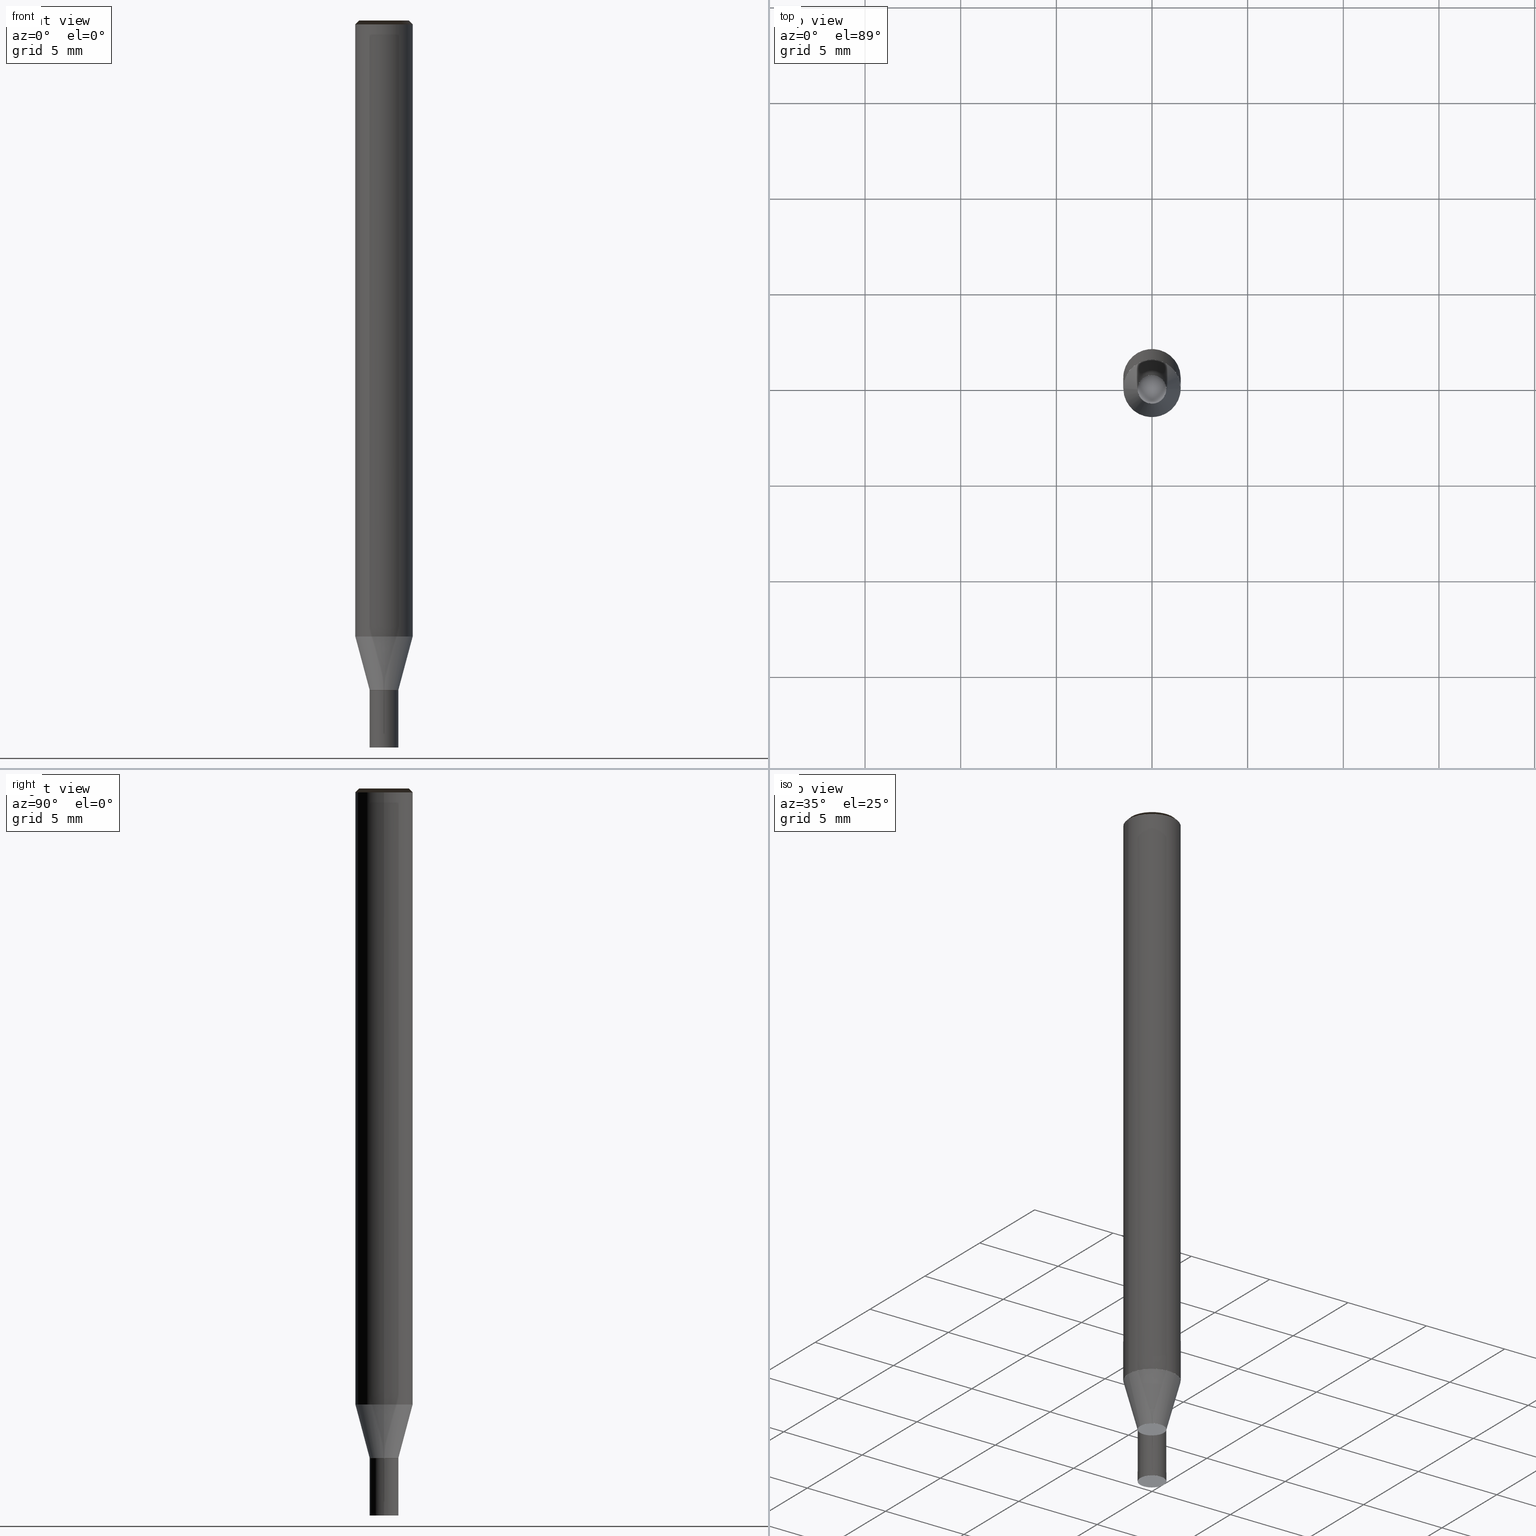
[diagram: canonical four-view strip — front | top / right | iso, engineering-drawing reading convention]
A machine part, canonical four-view strip (front | top / right | iso — engineering-drawing reading convention). The complete STEP part file that produces these views, byte-faithful:
ISO-10303-21;
HEADER;
/* Generated by ISBE GmbH (www.isbe.de) */
/* OPTION: using custom schema-name function */

FILE_DESCRIPTION(
/* description */ (''),
/* implementation_level */ '2;1');

FILE_NAME(
/*name*/ 'Drawing No  1070150',
/*time_stamp*/'2021-9-28T14:15:21',
/*author*/ ('ISBE GmbH'),
/*organization*/ ('ISBE GmbH'),
/*preprocessor_version*/ 'STEP IO v1.0',
/*originating_system*/ '',
/*authorisation*/ '');

FILE_SCHEMA (('AUTOMOTIVE_DESIGN'));
ENDSEC;

DATA;
#10=SHAPE_DEFINITION_REPRESENTATION(#11,#57);
#11=PRODUCT_DEFINITION_SHAPE('Document','',#13);
#12=PRODUCT_DEFINITION_CONTEXT('3D Mechanical Parts',#17,'design');
#13=PRODUCT_DEFINITION('A','First version',#14,#12);
#14=PRODUCT_DEFINITION_FORMATION_WITH_SPECIFIED_SOURCE('A','First version',#19,.MADE.);
#15=PRODUCT_RELATED_PRODUCT_CATEGORY('tool','tool',(#19));
#16=APPLICATION_PROTOCOL_DEFINITION('Draft International Standard', 'automotive_design',1999,#17);
#17=APPLICATION_CONTEXT('data for automotive mechanical design processes');
#18=PRODUCT_CONTEXT('3D Mechanical Parts',#17,'mechanical');
#19=PRODUCT('Document','Document','ISBE converted to STEP',(#18));
#20=(
LENGTH_UNIT()
NAMED_UNIT(*)
SI_UNIT(.MILLI.,.METRE.)
);
#21=(
NAMED_UNIT(*)
PLANE_ANGLE_UNIT()
SI_UNIT($,.RADIAN.)
);
#22=DIMENSIONAL_EXPONENTS(0.,0.,0.,0.,0.,0.,0.);
#23=PLANE_ANGLE_MEASURE_WITH_UNIT(PLANE_ANGLE_MEASURE(0.01745329252),#21);
#24=(
CONVERSION_BASED_UNIT('DEGREES',#23)
NAMED_UNIT(#22)
PLANE_ANGLE_UNIT()
);
#25=(
NAMED_UNIT(*)
SI_UNIT($,.STERADIAN.)
SOLID_ANGLE_UNIT()
);
#26=UNCERTAINTY_MEASURE_WITH_UNIT(LENGTH_MEASURE(0.001),#20, 'DISTANCE_ACCURACY_VALUE', 'Maximum model space distance between geometric entities at asserted connectivities');
#27=(
GEOMETRIC_REPRESENTATION_CONTEXT(3)
GLOBAL_UNCERTAINTY_ASSIGNED_CONTEXT((#26))
GLOBAL_UNIT_ASSIGNED_CONTEXT((#25,#24,#20))
REPRESENTATION_CONTEXT('ID1','3D')
);
#28=CARTESIAN_POINT('',(0.0,0.0,0.0));
#29=DIRECTION('',(1.0,0.0,0.0));
#30=DIRECTION('',(0.0,0.0,1.0));
#31=AXIS2_PLACEMENT_3D('',#28,#30,#29);
#32=CARTESIAN_POINT('',(0.0,0.0,0.0));
#33=DIRECTION('',(1.0,0.0,0.0));
#34=DIRECTION('',(0.0,0.0,1.0));
#35=AXIS2_PLACEMENT_3D('',#32,#34,#33);
#36=CARTESIAN_POINT('',(0.0,0.0,0.0));
#37=DIRECTION('',(1.0,0.0,0.0));
#38=DIRECTION('',(0.0,0.0,1.0));
#39=AXIS2_PLACEMENT_3D('',#36,#38,#37);
#40=CARTESIAN_POINT('',(0.0,0.0,0.0));
#41=DIRECTION('',(0.0,0.0,1.0));
#42=DIRECTION('',(1.0,0.0,0.0));
#43=AXIS2_PLACEMENT_3D('MCS',#40,#42,#41);
#44=CARTESIAN_POINT('',(0.0,0.0,32.2));
#45=DIRECTION('',(0.0,0.0,1.0));
#46=DIRECTION('',(1.0,0.0,0.0));
#47=AXIS2_PLACEMENT_3D('PCS',#44,#46,#45);
#48=CARTESIAN_POINT('',(0.0,0.0,-5.8));
#49=DIRECTION('',(0.0,0.0,1.0));
#50=DIRECTION('',(1.0,0.0,0.0));
#51=AXIS2_PLACEMENT_3D('CIP',#48,#50,#49);
#52=CARTESIAN_POINT('',(0.0,-0.75,-5.8));
#53=DIRECTION('',(0.0,0.0,1.0));
#54=DIRECTION('',(1.0,0.0,0.0));
#55=AXIS2_PLACEMENT_3D('CRP',#52,#54,#53);
#57=SHAPE_REPRESENTATION('Document',(#31,#35,#39,#43,#47,#51,#55),#27);
#58=DIRECTION('',(1.0,0.0,0.0));
#59=DIRECTION('',(0.0,0.0,1.0));
#60=CARTESIAN_POINT('',(-0.009999111072,-0.000133333333,-5.8));
#61=CARTESIAN_POINT('',(-0.009844606913,-0.011720115151,-5.8));
#62=CARTESIAN_POINT('',(-0.009613339801,-0.02906360672,-5.8));
#63=CARTESIAN_POINT('',(-0.009401561042,-0.044945601673,-5.8));
#64=CARTESIAN_POINT('',(-0.009193747038,-0.06053026653,-5.8));
#65=CARTESIAN_POINT('',(-0.008987451523,-0.076001054767,-5.8));
#66=CARTESIAN_POINT('',(-0.008781902181,-0.091415885016,-5.8));
#67=CARTESIAN_POINT('',(-0.008576775475,-0.106799020404,-5.8));
#68=CARTESIAN_POINT('',(-0.008371911563,-0.122162447994,-5.8));
#69=CARTESIAN_POINT('',(-0.008167222276,-0.137512779837,-5.8));
#70=CARTESIAN_POINT('',(-0.007962654958,-0.152853964843,-5.8));
#71=CARTESIAN_POINT('',(-0.007758176207,-0.168188507982,-5.8));
#72=CARTESIAN_POINT('',(-0.007553763803,-0.183518075429,-5.8));
#73=CARTESIAN_POINT('',(-0.007349402393,-0.198843818742,-5.8));
#74=CARTESIAN_POINT('',(-0.007145081021,-0.214166559397,-5.8));
#75=CARTESIAN_POINT('',(-0.006940791664,-0.229486899204,-5.8));
#76=CARTESIAN_POINT('',(-0.006736528307,-0.244805289156,-5.8));
#77=CARTESIAN_POINT('',(-0.006532286355,-0.260122073906,-5.8));
#78=CARTESIAN_POINT('',(-0.006328062234,-0.275437521375,-5.8));
#79=CARTESIAN_POINT('',(-0.006123853127,-0.290751842986,-5.8));
#80=CARTESIAN_POINT('',(-0.005919656778,-0.306065207812,-5.8));
#81=CARTESIAN_POINT('',(-0.005715471362,-0.32137775268,-5.8));
#82=CARTESIAN_POINT('',(-0.005511295388,-0.336689589509,-5.8));
#83=CARTESIAN_POINT('',(-0.005307127623,-0.352000810732,-5.8));
#84=CARTESIAN_POINT('',(-0.005102967039,-0.367311493361,-5.8));
#85=CARTESIAN_POINT('',(-0.004898812775,-0.382621702074,-5.8));
#86=CARTESIAN_POINT('',(-0.004694664101,-0.39793149159,-5.8));
#87=CARTESIAN_POINT('',(-0.004490520395,-0.413240908516,-5.8));
#88=CARTESIAN_POINT('',(-0.004286381125,-0.428549992795,-5.8));
#89=CARTESIAN_POINT('',(-0.004082245831,-0.443858778857,-5.8));
#90=CARTESIAN_POINT('',(-0.003878114116,-0.45916729654,-5.8));
#91=CARTESIAN_POINT('',(-0.003673985633,-0.474475571827,-5.8));
#92=CARTESIAN_POINT('',(-0.00346986008,-0.489783627452,-5.8));
#93=CARTESIAN_POINT('',(-0.003265737189,-0.505091483394,-5.8));
#94=CARTESIAN_POINT('',(-0.003061616725,-0.520399157279,-5.8));
#95=CARTESIAN_POINT('',(-0.002857498482,-0.535706664716,-5.8));
#96=CARTESIAN_POINT('',(-0.002653382272,-0.551014019581,-5.8));
#97=CARTESIAN_POINT('',(-0.002449267932,-0.56632123425,-5.8));
#98=CARTESIAN_POINT('',(-0.002245155314,-0.581628319793,-5.8));
#99=CARTESIAN_POINT('',(-0.002041044286,-0.596935286146,-5.8));
#100=CARTESIAN_POINT('',(-0.001836934727,-0.612242142251,-5.8));
#101=CARTESIAN_POINT('',(-0.001632826531,-0.627548896177,-5.8));
#102=CARTESIAN_POINT('',(-0.0014287196,-0.642855555224,-5.8));
#103=CARTESIAN_POINT('',(-0.001224613846,-0.658162126014,-5.8));
#104=CARTESIAN_POINT('',(-0.001020509188,-0.673468614565,-5.8));
#105=CARTESIAN_POINT('',(-0.000816405554,-0.688775026361,-5.8));
#106=CARTESIAN_POINT('',(-0.000612302877,-0.704081366409,-5.8));
#107=CARTESIAN_POINT('',(-0.000408201096,-0.71938763929,-5.8));
#108=CARTESIAN_POINT('',(-0.000204100154,-0.734693849201,-5.8));
#109=CARTESIAN_POINT('',(0.0,-0.75,-5.8));
#110=CARTESIAN_POINT('',(0.02838749307,-0.749462574274,-5.750819672131));
#111=CARTESIAN_POINT('',(0.056734303023,-0.747851067299,-5.701639344262));
#112=CARTESIAN_POINT('',(0.084999805045,-0.745167788583,-5.652459016393));
#113=CARTESIAN_POINT('',(0.113143490849,-0.741416583628,-5.603278688525));
#114=CARTESIAN_POINT('',(0.141125026725,-0.736602828417,-5.554098360656));
#115=CARTESIAN_POINT('',(0.168904311348,-0.730733421713,-5.504918032787));
#116=CARTESIAN_POINT('',(0.196441533245,-0.723816775169,-5.455737704918));
#117=CARTESIAN_POINT('',(0.223697227852,-0.715862801276,-5.406557377049));
#118=CARTESIAN_POINT('',(0.250632334073,-0.706882899155,-5.35737704918));
#119=CARTESIAN_POINT('',(0.277208250256,-0.696889938218,-5.308196721311));
#120=CARTESIAN_POINT('',(0.303386889518,-0.685898239733,-5.259016393443));
#121=CARTESIAN_POINT('',(0.329130734329,-0.673923556288,-5.209836065574));
#122=CARTESIAN_POINT('',(0.354402890275,-0.660983049226,-5.160655737705));
#123=CARTESIAN_POINT('',(0.37916713894,-0.647095264044,-5.111475409836));
#124=CARTESIAN_POINT('',(0.403387989806,-0.632280103815,-5.062295081967));
#125=CARTESIAN_POINT('',(0.427030731115,-0.61655880067,-5.013114754098));
#126=CARTESIAN_POINT('',(0.450061479623,-0.599953885361,-4.96393442623));
#127=CARTESIAN_POINT('',(0.47244722915,-0.582489154979,-4.914754098361));
#128=CARTESIAN_POINT('',(0.494155897891,-0.564189638845,-4.865573770492));
#129=CARTESIAN_POINT('',(0.515156374385,-0.54508156264,-4.816393442623));
#130=CARTESIAN_POINT('',(0.53541856211,-0.525192310824,-4.767213114754));
#131=CARTESIAN_POINT('',(0.554913422609,-0.504550387383,-4.718032786885));
#132=CARTESIAN_POINT('',(0.573613017111,-0.483185374987,-4.668852459016));
#133=CARTESIAN_POINT('',(0.591490546567,-0.461127892588,-4.619672131148));
#134=CARTESIAN_POINT('',(0.608520390058,-0.438409551542,-4.570491803279));
#135=CARTESIAN_POINT('',(0.624678141517,-0.415062910305,-4.52131147541));
#136=CARTESIAN_POINT('',(0.639940644698,-0.391121427773,-4.472131147541));
#137=CARTESIAN_POINT('',(0.654286026372,-0.366619415327,-4.422950819672));
#138=CARTESIAN_POINT('',(0.667693727664,-0.341591987667,-4.373770491803));
#139=CARTESIAN_POINT('',(0.680144533526,-0.316075012482,-4.324590163934));
#140=CARTESIAN_POINT('',(0.691620600268,-0.290105059048,-4.275409836066));
#141=CARTESIAN_POINT('',(0.702105481135,-0.263719345822,-4.226229508197));
#142=CARTESIAN_POINT('',(0.711584149873,-0.2369556871,-4.177049180328));
#143=CARTESIAN_POINT('',(0.720043022269,-0.209852438826,-4.127868852459));
#144=CARTESIAN_POINT('',(0.727469975614,-0.182448443621,-4.07868852459));
#145=CARTESIAN_POINT('',(0.73385436608,-0.154782975115,-4.029508196721));
#146=CARTESIAN_POINT('',(0.73918704397,-0.12689568167,-3.980327868852));
#147=CARTESIAN_POINT('',(0.743460366837,-0.098826529547,-3.931147540984));
#148=CARTESIAN_POINT('',(0.746668210431,-0.070615745639,-3.881967213115));
#149=CARTESIAN_POINT('',(0.748805977477,-0.042303759815,-3.832786885246));
#150=CARTESIAN_POINT('',(0.749870604267,-0.013931146981,-3.783606557377));
#151=CARTESIAN_POINT('',(0.749860565046,0.014461431071,-3.734426229508));
#152=CARTESIAN_POINT('',(0.748775874202,0.042833283936,-3.685245901639));
#153=CARTESIAN_POINT('',(0.746618086244,0.071143750911,-3.63606557377));
#154=CARTESIAN_POINT('',(0.743390293573,0.099352259268,-3.586885245902));
#155=CARTESIAN_POINT('',(0.739097122053,0.127418382397,-3.537704918033));
#156=CARTESIAN_POINT('',(0.73374472438,0.155301897749,-3.488524590164));
#157=CARTESIAN_POINT('',(0.727340771263,0.182962844474,-3.439344262295));
#158=CARTESIAN_POINT('',(0.719894440434,0.210361580693,-3.390163934426));
#159=CARTESIAN_POINT('',(0.711416403492,0.237458840311,-3.340983606557));
#160=CARTESIAN_POINT('',(0.701918810611,0.264215789291,-3.291803278689));
#161=CARTESIAN_POINT('',(0.691415273126,0.290594081304,-3.24262295082));
#162=CARTESIAN_POINT('',(0.679920844026,0.31655591269,-3.193442622951));
#163=CARTESIAN_POINT('',(0.667451996385,0.342064076632,-3.144262295082));
#164=CARTESIAN_POINT('',(0.654026599746,0.367082016482,-3.095081967213));
#165=CARTESIAN_POINT('',(0.63966389452,0.391573878147,-3.045901639344));
#166=CARTESIAN_POINT('',(0.624384464407,0.415504561476,-2.996721311475));
#167=CARTESIAN_POINT('',(0.608210206895,0.438839770564,-2.947540983607));
#168=CARTESIAN_POINT('',(0.591164301884,0.461546062899,-2.898360655738));
#169=CARTESIAN_POINT('',(0.573271178463,0.483590897293,-2.849180327869));
#170=CARTESIAN_POINT('',(0.554556479896,0.504942680515,-2.8));
#171=CARTESIAN_POINT('',(0.00511502559,-0.008592817537,-5.8));
#172=CARTESIAN_POINT('',(0.015072220912,-0.002665622102,-5.8));
#173=CARTESIAN_POINT('',(0.029976491645,0.006206406877,-5.8));
#174=CARTESIAN_POINT('',(0.043624813359,0.014330810139,-5.8));
#175=CARTESIAN_POINT('',(0.057017622032,0.022303114774,-5.8));
#176=CARTESIAN_POINT('',(0.070312569904,0.030217166049,-5.8));
#177=CARTESIAN_POINT('',(0.083559429824,0.038102592126,-5.8));
#178=CARTESIAN_POINT('',(0.096779052506,0.045971804758,-5.8));
#179=CARTESIAN_POINT('',(0.109981739133,0.053830935905,-5.8));
#180=CARTESIAN_POINT('',(0.123173171822,0.061683367949,-5.8));
#181=CARTESIAN_POINT('',(0.136356744103,0.069531120946,-5.8));
#182=CARTESIAN_POINT('',(0.14953460864,0.077375476309,-5.8));
#183=CARTESIAN_POINT('',(0.162708197277,0.085217286367,-5.8));
#184=CARTESIAN_POINT('',(0.175878499613,0.093057140196,-5.8));
#185=CARTESIAN_POINT('',(0.18904622159,0.100895458022,-5.8));
#186=CARTESIAN_POINT('',(0.202211880378,0.108732547699,-5.8));
#187=CARTESIAN_POINT('',(0.215375863543,0.116568639931,-5.8));
#188=CARTESIAN_POINT('',(0.228538467265,0.124403911025,-5.8));
#189=CARTESIAN_POINT('',(0.241699921784,0.132238498036,-5.8));
#190=CARTESIAN_POINT('',(0.254860408786,0.140072509116,-5.8));
#191=CARTESIAN_POINT('',(0.268020073568,0.147906030755,-5.8));
#192=CARTESIAN_POINT('',(0.281179033713,0.155739132946,-5.8));
#193=CARTESIAN_POINT('',(0.294337385399,0.163571872941,-5.8));
#194=CARTESIAN_POINT('',(0.307495208058,0.171404298024,-5.8));
#195=CARTESIAN_POINT('',(0.320652567872,0.17923644759,-5.8));
#196=CARTESIAN_POINT('',(0.333809520423,0.187068354725,-5.8));
#197=CARTESIAN_POINT('',(0.346966112733,0.194900047421,-5.8));
#198=CARTESIAN_POINT('',(0.360122384855,0.20273154952,-5.8));
#199=CARTESIAN_POINT('',(0.373278371114,0.210562881453,-5.8));
#200=CARTESIAN_POINT('',(0.386434101099,0.218394060835,-5.8));
#201=CARTESIAN_POINT('',(0.399589600449,0.226225102927,-5.8));
#202=CARTESIAN_POINT('',(0.412744891494,0.234056021022,-5.8));
#203=CARTESIAN_POINT('',(0.425899993771,0.24188682675,-5.8));
#204=CARTESIAN_POINT('',(0.439054924449,0.24971753033,-5.8));
#205=CARTESIAN_POINT('',(0.452209698674,0.257548140778,-5.8));
#206=CARTESIAN_POINT('',(0.465364329861,0.265378666081,-5.8));
#207=CARTESIAN_POINT('',(0.478518829935,0.273209113337,-5.8));
#208=CARTESIAN_POINT('',(0.491673209529,0.281039488875,-5.8));
#209=CARTESIAN_POINT('',(0.504827478158,0.288869798359,-5.8));
#210=CARTESIAN_POINT('',(0.51798164436,0.296700046871,-5.8));
#211=CARTESIAN_POINT('',(0.53113571582,0.304530238987,-5.8));
#212=CARTESIAN_POINT('',(0.544289699472,0.312360378833,-5.8));
#213=CARTESIAN_POINT('',(0.557443601588,0.320190470144,-5.8));
#214=CARTESIAN_POINT('',(0.57059742786,0.328020516307,-5.8));
#215=CARTESIAN_POINT('',(0.583751183459,0.335850520401,-5.8));
#216=CARTESIAN_POINT('',(0.596904873098,0.343680485231,-5.8));
#217=CARTESIAN_POINT('',(0.61005850108,0.351510413358,-5.8));
#218=CARTESIAN_POINT('',(0.623212071341,0.359340307126,-5.8));
#219=CARTESIAN_POINT('',(0.636365587489,0.367170168683,-5.8));
#220=CARTESIAN_POINT('',(0.649519052838,0.375,-5.8));
#221=CARTESIAN_POINT('',(0.634859881972,0.399315577286,-5.750819672131));
#222=CARTESIAN_POINT('',(0.619290871017,0.423058881333,-5.701639344262));
#223=CARTESIAN_POINT('',(0.602834332473,0.446195884777,-5.652459016393));
#224=CARTESIAN_POINT('',(0.585513850785,0.468693429162,-5.603278688525));
#225=CARTESIAN_POINT('',(0.567354248546,0.490519272462,-5.554098360656));
#226=CARTESIAN_POINT('',(0.548381550924,0.511642135292,-5.504918032787));
#227=CARTESIAN_POINT('',(0.528622948359,0.532031745733,-5.455737704918));
#228=CARTESIAN_POINT('',(0.508106757603,0.551658882714,-5.406557377049));
#229=CARTESIAN_POINT('',(0.486862381132,0.570495417894,-5.35737704918));
#230=CARTESIAN_POINT('',(0.464920265011,0.588514355969,-5.308196721311));
#231=CARTESIAN_POINT('',(0.442311855261,0.605689873364,-5.259016393443));
#232=CARTESIAN_POINT('',(0.41906955279,0.621997355239,-5.209836065574));
#233=CARTESIAN_POINT('',(0.395226666963,0.637413430766,-5.160655737705));
#234=CARTESIAN_POINT('',(0.37081736786,0.651916006625,-5.111475409836));
#235=CARTESIAN_POINT('',(0.345876637309,0.665484298661,-5.062295081967));
#236=CARTESIAN_POINT('',(0.320440218749,0.678098861677,-5.013114754098));
#237=CARTESIAN_POINT('',(0.294544566011,0.689741617299,-4.96393442623));
#238=CARTESIAN_POINT('',(0.268226791066,0.700395879881,-4.914754098361));
#239=CARTESIAN_POINT('',(0.241524610846,0.710046380426,-4.865573770492));
#240=CARTESIAN_POINT('',(0.214476293189,0.718679288459,-4.816393442623));
#241=CARTESIAN_POINT('',(0.187120601991,0.726282231857,-4.767213114754));
#242=CARTESIAN_POINT('',(0.159496741658,0.732844314572,-4.718032786885));
#243=CARTESIAN_POINT('',(0.13164430092,0.738356132253,-4.668852459016));
#244=CARTESIAN_POINT('',(0.103603196091,0.742809785719,-4.619672131148));
#245=CARTESIAN_POINT('',(0.075413613868,0.746198892282,-4.570491803279));
#246=CARTESIAN_POINT('',(0.047115953735,0.748518594895,-4.52131147541));
#247=CARTESIAN_POINT('',(0.018750770066,0.749765569109,-4.472131147541));
#248=CARTESIAN_POINT('',(-0.009641285992,0.749938027843,-4.422950819672));
#249=CARTESIAN_POINT('',(-0.038019524783,0.749035723938,-4.373770491803));
#250=CARTESIAN_POINT('',(-0.066343276452,0.747059950519,-4.324590163934));
#251=CARTESIAN_POINT('',(-0.094571949232,0.744013539137,-4.275409836066));
#252=CARTESIAN_POINT('',(-0.122665087616,0.73990085571,-4.226229508197));
#253=CARTESIAN_POINT('',(-0.150582430336,0.734727794271,-4.177049180328));
#254=CARTESIAN_POINT('',(-0.178283968065,0.728501768516,-4.127868852459));
#255=CARTESIAN_POINT('',(-0.205730000751,0.721231701183,-4.07868852459));
#256=CARTESIAN_POINT('',(-0.232881194517,0.712928011261,-4.029508196721));
#257=CARTESIAN_POINT('',(-0.259698638029,0.703602599061,-3.980327868852));
#258=CARTESIAN_POINT('',(-0.286143898263,0.693268829161,-3.931147540984));
#259=CARTESIAN_POINT('',(-0.312179075585,0.681941511251,-3.881967213115));
#260=CARTESIAN_POINT('',(-0.337766858063,0.669636878908,-3.832786885246));
#261=CARTESIAN_POINT('',(-0.362870574944,0.656372566337,-3.783606557377));
#262=CARTESIAN_POINT('',(-0.387454249206,0.642167583091,-3.734426229508));
#263=CARTESIAN_POINT('',(-0.411482649117,0.627042286832,-3.685245901639));
#264=CARTESIAN_POINT('',(-0.434921338732,0.611018354156,-3.63606557377));
#265=CARTESIAN_POINT('',(-0.457736727236,0.594118749527,-3.586885245902));
#266=CARTESIAN_POINT('',(-0.479896117092,0.576367692363,-3.537704918033));
#267=CARTESIAN_POINT('',(-0.501367750897,0.557790622331,-3.488524590164));
#268=CARTESIAN_POINT('',(-0.522120856895,0.538414162885,-3.439344262295));
#269=CARTESIAN_POINT('',(-0.542125693078,0.518266083113,-3.390163934426));
#270=CARTESIAN_POINT('',(-0.561353589809,0.497375257938,-3.340983606557));
#271=CARTESIAN_POINT('',(-0.579776990912,0.475771626738,-3.291803278689));
#272=CARTESIAN_POINT('',(-0.597369493161,0.453486150439,-3.24262295082));
#273=CARTESIAN_POINT('',(-0.61410588412,0.430550767144,-3.193442622951));
#274=CARTESIAN_POINT('',(-0.629962178278,0.40699834636,-3.144262295082));
#275=CARTESIAN_POINT('',(-0.644915651419,0.38286264189,-3.095081967213));
#276=CARTESIAN_POINT('',(-0.658944873194,0.358178243465,-3.045901639344));
#277=CARTESIAN_POINT('',(-0.67202973783,0.332980527166,-2.996721311475));
#278=CARTESIAN_POINT('',(-0.684151492947,0.30730560473,-2.947540983607));
#279=CARTESIAN_POINT('',(-0.695292766429,0.281190271793,-2.898360655738));
#280=CARTESIAN_POINT('',(-0.705437591326,0.25467195516,-2.849180327869));
#281=CARTESIAN_POINT('',(-0.714571428729,0.227788659165,-2.8));
#282=CARTESIAN_POINT('',(0.004884085482,0.00872615087,-5.8));
#283=CARTESIAN_POINT('',(-0.005227613999,0.014385737252,-5.8));
#284=CARTESIAN_POINT('',(-0.020363151845,0.022857199843,-5.8));
#285=CARTESIAN_POINT('',(-0.034223252316,0.030614791535,-5.8));
#286=CARTESIAN_POINT('',(-0.047823874994,0.038227151756,-5.8));
#287=CARTESIAN_POINT('',(-0.061325118381,0.045783888718,-5.8));
#288=CARTESIAN_POINT('',(-0.074777527643,0.053313292891,-5.8));
#289=CARTESIAN_POINT('',(-0.088202277031,0.060827215646,-5.8));
#290=CARTESIAN_POINT('',(-0.10160982757,0.068331512089,-5.8));
#291=CARTESIAN_POINT('',(-0.115005949546,0.075829411888,-5.8));
#292=CARTESIAN_POINT('',(-0.128394089144,0.083322843897,-5.8));
#293=CARTESIAN_POINT('',(-0.141776432434,0.090813031673,-5.8));
#294=CARTESIAN_POINT('',(-0.155154433474,0.098300789062,-5.8));
#295=CARTESIAN_POINT('',(-0.16852909722,0.105786678546,-5.8));
#296=CARTESIAN_POINT('',(-0.181901140569,0.113271101375,-5.8));
#297=CARTESIAN_POINT('',(-0.195271088714,0.120754351505,-5.8));
#298=CARTESIAN_POINT('',(-0.208639335236,0.128236649225,-5.8));
#299=CARTESIAN_POINT('',(-0.222006180911,0.135718162881,-5.8));
#300=CARTESIAN_POINT('',(-0.235371859549,0.143199023339,-5.8));
#301=CARTESIAN_POINT('',(-0.248736555659,0.15067933387,-5.8));
#302=CARTESIAN_POINT('',(-0.262100416791,0.158159177057,-5.8));
#303=CARTESIAN_POINT('',(-0.275463562351,0.165638619734,-5.8));
#304=CARTESIAN_POINT('',(-0.288826090011,0.173117716568,-5.8));
#305=CARTESIAN_POINT('',(-0.302188080436,0.180596512708,-5.8));
#306=CARTESIAN_POINT('',(-0.315549600833,0.188075045771,-5.8));
#307=CARTESIAN_POINT('',(-0.328910707648,0.195553347349,-5.8));
#308=CARTESIAN_POINT('',(-0.342271448632,0.203031444169,-5.8));
#309=CARTESIAN_POINT('',(-0.35563186446,0.210509358996,-5.8));
#310=CARTESIAN_POINT('',(-0.36899198999,0.217987111342,-5.8));
#311=CARTESIAN_POINT('',(-0.382351855268,0.225464718023,-5.8));
#312=CARTESIAN_POINT('',(-0.395711486333,0.232942193613,-5.8));
#313=CARTESIAN_POINT('',(-0.40907090586,0.240419550805,-5.8));
#314=CARTESIAN_POINT('',(-0.422430133692,0.247896800703,-5.8));
#315=CARTESIAN_POINT('',(-0.43578918726,0.255373953065,-5.8));
#316=CARTESIAN_POINT('',(-0.449148081948,0.2628510165,-5.8));
#317=CARTESIAN_POINT('',(-0.46250683138,0.270327998634,-5.8));
#318=CARTESIAN_POINT('',(-0.475865447662,0.277804906244,-5.8));
#319=CARTESIAN_POINT('',(-0.489223941596,0.285281745375,-5.8));
#320=CARTESIAN_POINT('',(-0.502582322844,0.292758521434,-5.8));
#321=CARTESIAN_POINT('',(-0.515940600075,0.300235239274,-5.8));
#322=CARTESIAN_POINT('',(-0.529298781093,0.307711903264,-5.8));
#323=CARTESIAN_POINT('',(-0.542656872941,0.315188517344,-5.8));
#324=CARTESIAN_POINT('',(-0.556014881988,0.322665085081,-5.8));
#325=CARTESIAN_POINT('',(-0.569372814014,0.330141609707,-5.8));
#326=CARTESIAN_POINT('',(-0.582730674271,0.337618094165,-5.8));
#327=CARTESIAN_POINT('',(-0.596088467544,0.345094541131,-5.8));
#328=CARTESIAN_POINT('',(-0.609446198203,0.352570953051,-5.8));
#329=CARTESIAN_POINT('',(-0.622803870245,0.360047332163,-5.8));
#330=CARTESIAN_POINT('',(-0.636161487336,0.367523680519,-5.8));
#331=CARTESIAN_POINT('',(-0.649519052838,0.375,-5.8));
#332=CARTESIAN_POINT('',(-0.663247375042,0.350146996988,-5.750819672131));
#333=CARTESIAN_POINT('',(-0.67602517404,0.324792185966,-5.701639344262));
#334=CARTESIAN_POINT('',(-0.687834137518,0.298971903806,-5.652459016393));
#335=CARTESIAN_POINT('',(-0.698657341633,0.272723154466,-5.603278688525));
#336=CARTESIAN_POINT('',(-0.708479275271,0.246083555955,-5.554098360656));
#337=CARTESIAN_POINT('',(-0.717285862272,0.219091286421,-5.504918032787));
#338=CARTESIAN_POINT('',(-0.725064481604,0.191785029436,-5.455737704918));
#339=CARTESIAN_POINT('',(-0.731803985456,0.164203918562,-5.406557377049));
#340=CARTESIAN_POINT('',(-0.737494715205,0.13638748126,-5.35737704918));
#341=CARTESIAN_POINT('',(-0.742128515267,0.108375582249,-5.308196721311));
#342=CARTESIAN_POINT('',(-0.745698744779,0.080208366369,-5.259016393443));
#343=CARTESIAN_POINT('',(-0.748200287119,0.051926201049,-5.209836065574));
#344=CARTESIAN_POINT('',(-0.749629557239,0.02356961846,-5.160655737705));
#345=CARTESIAN_POINT('',(-0.749984506801,-0.004820742581,-5.111475409836));
#346=CARTESIAN_POINT('',(-0.749264627114,-0.033204194846,-5.062295081967));
#347=CARTESIAN_POINT('',(-0.747470949864,-0.061540061007,-5.013114754098));
#348=CARTESIAN_POINT('',(-0.744606045633,-0.089787731937,-4.96393442623));
#349=CARTESIAN_POINT('',(-0.740674020216,-0.117906724902,-4.914754098361));
#350=CARTESIAN_POINT('',(-0.735680508737,-0.145856741581,-4.865573770492));
#351=CARTESIAN_POINT('',(-0.729632667574,-0.173597725819,-4.816393442623));
#352=CARTESIAN_POINT('',(-0.7225391641,-0.201089921033,-4.767213114754));
#353=CARTESIAN_POINT('',(-0.714410164267,-0.228293927189,-4.718032786885));
#354=CARTESIAN_POINT('',(-0.705257318031,-0.255170757266,-4.668852459016));
#355=CARTESIAN_POINT('',(-0.695093742658,-0.281681893131,-4.619672131148));
#356=CARTESIAN_POINT('',(-0.683934003926,-0.30778934074,-4.570491803279));
#357=CARTESIAN_POINT('',(-0.671794095251,-0.33345568459,-4.52131147541));
#358=CARTESIAN_POINT('',(-0.658691414765,-0.358644141337,-4.472131147541));
#359=CARTESIAN_POINT('',(-0.64464474038,-0.383318612515,-4.422950819672));
#360=CARTESIAN_POINT('',(-0.629674202881,-0.407443736271,-4.373770491803));
#361=CARTESIAN_POINT('',(-0.613801257073,-0.430984938037,-4.324590163934));
#362=CARTESIAN_POINT('',(-0.597048651036,-0.453908480089,-4.275409836066));
#363=CARTESIAN_POINT('',(-0.579440393519,-0.476181509888,-4.226229508197));
#364=CARTESIAN_POINT('',(-0.561001719537,-0.49777210717,-4.177049180328));
#365=CARTESIAN_POINT('',(-0.541759054204,-0.51864932969,-4.127868852459));
#366=CARTESIAN_POINT('',(-0.521739974864,-0.538783257562,-4.07868852459));
#367=CARTESIAN_POINT('',(-0.500973171563,-0.558145036146,-4.029508196721));
#368=CARTESIAN_POINT('',(-0.479488405942,-0.576706917392,-3.980327868852));
#369=CARTESIAN_POINT('',(-0.457316468574,-0.594442299615,-3.931147540984));
#370=CARTESIAN_POINT('',(-0.434489134846,-0.611325765612,-3.881967213115));
#371=CARTESIAN_POINT('',(-0.411039119414,-0.627333119093,-3.832786885246));
#372=CARTESIAN_POINT('',(-0.387000029323,-0.642441419356,-3.783606557377));
#373=CARTESIAN_POINT('',(-0.362406315841,-0.656629014162,-3.734426229508));
#374=CARTESIAN_POINT('',(-0.337293225085,-0.669875570768,-3.685245901639));
#375=CARTESIAN_POINT('',(-0.311696747512,-0.682162105068,-3.63606557377));
#376=CARTESIAN_POINT('',(-0.285653566337,-0.693471008795,-3.586885245902));
#377=CARTESIAN_POINT('',(-0.259201004961,-0.703786074761,-3.537704918033));
#378=CARTESIAN_POINT('',(-0.232376973483,-0.71309252008,-3.488524590164));
#379=CARTESIAN_POINT('',(-0.205219914369,-0.721377007359,-3.439344262295));
#380=CARTESIAN_POINT('',(-0.177768747357,-0.728627663806,-3.390163934426));
#381=CARTESIAN_POINT('',(-0.150062813683,-0.734834098249,-3.340983606557));
#382=CARTESIAN_POINT('',(-0.122141819699,-0.739987416029,-3.291803278689));
#383=CARTESIAN_POINT('',(-0.094045779964,-0.744080231743,-3.24262295082));
#384=CARTESIAN_POINT('',(-0.065814959906,-0.747106679834,-3.193442622951));
#385=CARTESIAN_POINT('',(-0.037489818107,-0.749062422992,-3.144262295082));
#386=CARTESIAN_POINT('',(-0.009110948327,-0.749944658372,-3.095081967213));
#387=CARTESIAN_POINT('',(0.019280978673,-0.749752121612,-3.045901639344));
#388=CARTESIAN_POINT('',(0.047645273424,-0.748485088643,-2.996721311475));
#389=CARTESIAN_POINT('',(0.075941286052,-0.746145375294,-2.947540983607));
#390=CARTESIAN_POINT('',(0.104128464545,-0.742736334692,-2.898360655738));
#391=CARTESIAN_POINT('',(0.132166412863,-0.738262852452,-2.849180327869));
#392=CARTESIAN_POINT('',(0.160014948833,-0.73273133968,-2.8));
#393=CARTESIAN_POINT('',(0.0,0.0,-5.8));
#394=CARTESIAN_POINT('',(0.75,0.0,-5.8));
#395=CARTESIAN_POINT('',(0.75,0.75,-5.8));
#396=CARTESIAN_POINT('',(0.0,0.75,-5.8));
#397=CARTESIAN_POINT('',(-0.75,0.75,-5.8));
#398=CARTESIAN_POINT('',(-0.75,0.0,-5.8));
#399=CARTESIAN_POINT('',(0.75,0.0,-2.8));
#400=CARTESIAN_POINT('',(0.75,0.75,-2.8));
#401=CARTESIAN_POINT('',(0.0,0.75,-2.8));
#402=CARTESIAN_POINT('',(-0.75,0.75,-2.8));
#403=CARTESIAN_POINT('',(-0.75,0.0,-2.8));
#404=CARTESIAN_POINT('',(0.0,0.0,-2.8));
#405=CARTESIAN_POINT('',(-0.75,-0.75,-5.8));
#406=CARTESIAN_POINT('',(0.75,-0.75,-5.8));
#407=CARTESIAN_POINT('',(-0.75,-0.75,-2.8));
#408=CARTESIAN_POINT('',(0.0,-0.75,-2.8));
#409=CARTESIAN_POINT('',(0.75,-0.75,-2.8));
#410=CARTESIAN_POINT('',(0.75,0.0,-2.799038105677));
#411=CARTESIAN_POINT('',(0.75,0.75,-2.799038105677));
#412=CARTESIAN_POINT('',(0.0,0.75,-2.799038105677));
#413=CARTESIAN_POINT('',(-0.75,0.75,-2.799038105677));
#414=CARTESIAN_POINT('',(-0.75,0.0,-2.799038105677));
#415=CARTESIAN_POINT('',(1.5,0.0,0.0));
#416=CARTESIAN_POINT('',(1.5,1.5,0.0));
#417=CARTESIAN_POINT('',(0.0,1.5,0.0));
#418=CARTESIAN_POINT('',(-1.5,1.5,0.0));
#419=CARTESIAN_POINT('',(-1.5,0.0,0.0));
#420=CARTESIAN_POINT('',(1.5,0.0,32.0));
#421=CARTESIAN_POINT('',(1.5,1.5,32.0));
#422=CARTESIAN_POINT('',(0.0,1.5,32.0));
#423=CARTESIAN_POINT('',(-1.5,1.5,32.0));
#424=CARTESIAN_POINT('',(-1.5,0.0,32.0));
#425=CARTESIAN_POINT('',(1.3,0.0,32.2));
#426=CARTESIAN_POINT('',(1.3,1.3,32.2));
#427=CARTESIAN_POINT('',(0.0,1.3,32.2));
#428=CARTESIAN_POINT('',(-1.3,1.3,32.2));
#429=CARTESIAN_POINT('',(-1.3,0.0,32.2));
#430=CARTESIAN_POINT('',(0.0,0.0,32.2));
#431=CARTESIAN_POINT('',(-0.75,-0.75,-2.799038105677));
#432=CARTESIAN_POINT('',(0.0,-0.75,-2.799038105677));
#433=CARTESIAN_POINT('',(0.75,-0.75,-2.799038105677));
#434=CARTESIAN_POINT('',(-1.5,-1.5,0.0));
#435=CARTESIAN_POINT('',(0.0,-1.5,0.0));
#436=CARTESIAN_POINT('',(1.5,-1.5,0.0));
#437=CARTESIAN_POINT('',(-1.5,-1.5,32.0));
#438=CARTESIAN_POINT('',(0.0,-1.5,32.0));
#439=CARTESIAN_POINT('',(1.5,-1.5,32.0));
#440=CARTESIAN_POINT('',(-1.3,-1.3,32.2));
#441=CARTESIAN_POINT('',(0.0,-1.3,32.2));
#442=CARTESIAN_POINT('',(1.3,-1.3,32.2));
#443=(
BOUNDED_CURVE()
B_SPLINE_CURVE(1,(#60,#61,#62,#63,#64,#65,#66,#67,#68,#69,#70,#71,#72,#73,#74,#75,#76,#77,#78,#79,#80,#81,#82,#83,#84,#85,#86,#87,#88,#89,#90,#91,#92,#93,#94,#95,#96,#97,#98,#99,#100,#101,#102,#103,#104,#105,#106,#107,#108,#109,#110,#111,#112,#113,#114,#115,#116,#117,#118,#119,#120,#121,#122,#123,#124,#125,#126,#127,#128,#129,#130,#131,#132,#133,#134,#135,#136,#137,#138,#139,#140,#141,#142,#143,#144,#145,#146,#147,#148,#149,#150,#151,#152,#153,#154,#155,#156,#157,#158,#159,#160,#161,#162,#163,#164,#165,#166,#167,#168,#169,#170),.UNSPECIFIED.,.F.,.F.)
B_SPLINE_CURVE_WITH_KNOTS((2,1,1,1,1,1,1,1,1,1,1,1,1,1,1,1,1,1,1,1,1,1,1,1,1,1,1,1,1,1,1,1,1,1,1,1,1,1,1,1,1,1,1,1,1,1,1,1,1,1,1,1,1,1,1,1,1,1,1,1,1,1,1,1,1,1,1,1,1,1,1,1,1,1,1,1,1,1,1,1,1,1,1,1,1,1,1,1,1,1,1,1,1,1,1,1,1,1,1,1,1,1,1,1,1,1,1,1,1,1,2),
(0.0,0.002749847654,0.006865913732,0.010635128277,0.014333778581,0.018005402972,0.021663747063,0.02531456913,0.02896071402,0.032603750945,0.036244617085,0.039883906936,0.043522015924,0.047159217345,0.050795706156,0.054431625183,0.058067081458,0.061702156777,0.065336914724,0.068971405475,0.072605669155,0.076239738239,0.079873639286,0.083507394233,0.087141021358,0.09077453601,0.094407951176,0.098041277917,0.101674525711,0.105307702731,0.108940816057,0.112573871857,0.116206875525,0.119839831803,0.123472744874,0.127105618442,0.130738455801,0.134371259888,0.13800403333,0.141636778485,0.145269497476,0.148902192216,0.15253486444,0.156167515717,0.159800147477,0.163432761022,0.167065357538,0.170697938114,0.174330503746,0.177963055348,0.191439070834,0.20491508632,0.218391101807,0.231867117293,0.245343132779,0.258819148265,0.272295163751,0.285771179237,0.299247194723,0.312723210209,0.326199225695,0.339675241181,0.353151256667,0.366627272154,0.38010328764,0.393579303126,0.407055318612,0.420531334098,0.434007349584,0.44748336507,0.460959380556,0.474435396042,0.487911411528,0.501387427015,0.514863442501,0.528339457987,0.541815473473,0.555291488959,0.568767504445,0.582243519931,0.595719535417,0.609195550903,0.622671566389,0.636147581875,0.649623597362,0.663099612848,0.676575628334,0.69005164382,0.703527659306,0.717003674792,0.730479690278,0.743955705764,0.75743172125,0.770907736736,0.784383752222,0.797859767709,0.811335783195,0.824811798681,0.838287814167,0.851763829653,0.865239845139,0.878715860625,0.892191876111,0.905667891597,0.919143907083,0.93261992257,0.946095938056,0.959571953542,0.973047969028,0.986523984514,1.0),.UNSPECIFIED.)
CURVE()
GEOMETRIC_REPRESENTATION_ITEM()
RATIONAL_B_SPLINE_CURVE((1.0,1.0,1.0,1.0,1.0,1.0,1.0,1.0,1.0,1.0,1.0,1.0,1.0,1.0,1.0,1.0,1.0,1.0,1.0,1.0,1.0,1.0,1.0,1.0,1.0,1.0,1.0,1.0,1.0,1.0,1.0,1.0,1.0,1.0,1.0,1.0,1.0,1.0,1.0,1.0,1.0,1.0,1.0,1.0,1.0,1.0,1.0,1.0,1.0,1.0,1.0,1.0,1.0,1.0,1.0,1.0,1.0,1.0,1.0,1.0,1.0,1.0,1.0,1.0,1.0,1.0,1.0,1.0,1.0,1.0,1.0,1.0,1.0,1.0,1.0,1.0,1.0,1.0,1.0,1.0,1.0,1.0,1.0,1.0,1.0,1.0,1.0,1.0,1.0,1.0,1.0,1.0,1.0,1.0,1.0,1.0,1.0,1.0,1.0,1.0,1.0,1.0,1.0,1.0,1.0,1.0,1.0,1.0,1.0,1.0,1.0))
REPRESENTATION_ITEM('')
);
#444=(
BOUNDED_CURVE()
B_SPLINE_CURVE(1,(#171,#172,#173,#174,#175,#176,#177,#178,#179,#180,#181,#182,#183,#184,#185,#186,#187,#188,#189,#190,#191,#192,#193,#194,#195,#196,#197,#198,#199,#200,#201,#202,#203,#204,#205,#206,#207,#208,#209,#210,#211,#212,#213,#214,#215,#216,#217,#218,#219,#220,#221,#222,#223,#224,#225,#226,#227,#228,#229,#230,#231,#232,#233,#234,#235,#236,#237,#238,#239,#240,#241,#242,#243,#244,#245,#246,#247,#248,#249,#250,#251,#252,#253,#254,#255,#256,#257,#258,#259,#260,#261,#262,#263,#264,#265,#266,#267,#268,#269,#270,#271,#272,#273,#274,#275,#276,#277,#278,#279,#280,#281),.UNSPECIFIED.,.F.,.F.)
B_SPLINE_CURVE_WITH_KNOTS((2,1,1,1,1,1,1,1,1,1,1,1,1,1,1,1,1,1,1,1,1,1,1,1,1,1,1,1,1,1,1,1,1,1,1,1,1,1,1,1,1,1,1,1,1,1,1,1,1,1,1,1,1,1,1,1,1,1,1,1,1,1,1,1,1,1,1,1,1,1,1,1,1,1,1,1,1,1,1,1,1,1,1,1,1,1,1,1,1,1,1,1,1,1,1,1,1,1,1,1,1,1,1,1,1,1,1,1,1,1,2),
(0.0,0.002749847654,0.006865913732,0.010635128277,0.014333778581,0.018005402972,0.021663747063,0.02531456913,0.02896071402,0.032603750945,0.036244617085,0.039883906936,0.043522015924,0.047159217345,0.050795706156,0.054431625183,0.058067081458,0.061702156777,0.065336914724,0.068971405475,0.072605669155,0.076239738239,0.079873639286,0.083507394233,0.087141021358,0.09077453601,0.094407951176,0.098041277917,0.101674525711,0.105307702731,0.108940816057,0.112573871857,0.116206875525,0.119839831803,0.123472744874,0.127105618442,0.130738455801,0.134371259888,0.13800403333,0.141636778485,0.145269497476,0.148902192216,0.15253486444,0.156167515717,0.159800147477,0.163432761022,0.167065357538,0.170697938114,0.174330503746,0.177963055348,0.191439070834,0.20491508632,0.218391101807,0.231867117293,0.245343132779,0.258819148265,0.272295163751,0.285771179237,0.299247194723,0.312723210209,0.326199225695,0.339675241181,0.353151256667,0.366627272154,0.38010328764,0.393579303126,0.407055318612,0.420531334098,0.434007349584,0.44748336507,0.460959380556,0.474435396042,0.487911411528,0.501387427015,0.514863442501,0.528339457987,0.541815473473,0.555291488959,0.568767504445,0.582243519931,0.595719535417,0.609195550903,0.622671566389,0.636147581875,0.649623597362,0.663099612848,0.676575628334,0.69005164382,0.703527659306,0.717003674792,0.730479690278,0.743955705764,0.75743172125,0.770907736736,0.784383752222,0.797859767709,0.811335783195,0.824811798681,0.838287814167,0.851763829653,0.865239845139,0.878715860625,0.892191876111,0.905667891597,0.919143907083,0.93261992257,0.946095938056,0.959571953542,0.973047969028,0.986523984514,1.0),.UNSPECIFIED.)
CURVE()
GEOMETRIC_REPRESENTATION_ITEM()
RATIONAL_B_SPLINE_CURVE((1.0,1.0,1.0,1.0,1.0,1.0,1.0,1.0,1.0,1.0,1.0,1.0,1.0,1.0,1.0,1.0,1.0,1.0,1.0,1.0,1.0,1.0,1.0,1.0,1.0,1.0,1.0,1.0,1.0,1.0,1.0,1.0,1.0,1.0,1.0,1.0,1.0,1.0,1.0,1.0,1.0,1.0,1.0,1.0,1.0,1.0,1.0,1.0,1.0,1.0,1.0,1.0,1.0,1.0,1.0,1.0,1.0,1.0,1.0,1.0,1.0,1.0,1.0,1.0,1.0,1.0,1.0,1.0,1.0,1.0,1.0,1.0,1.0,1.0,1.0,1.0,1.0,1.0,1.0,1.0,1.0,1.0,1.0,1.0,1.0,1.0,1.0,1.0,1.0,1.0,1.0,1.0,1.0,1.0,1.0,1.0,1.0,1.0,1.0,1.0,1.0,1.0,1.0,1.0,1.0,1.0,1.0,1.0,1.0,1.0,1.0))
REPRESENTATION_ITEM('')
);
#445=(
BOUNDED_CURVE()
B_SPLINE_CURVE(1,(#282,#283,#284,#285,#286,#287,#288,#289,#290,#291,#292,#293,#294,#295,#296,#297,#298,#299,#300,#301,#302,#303,#304,#305,#306,#307,#308,#309,#310,#311,#312,#313,#314,#315,#316,#317,#318,#319,#320,#321,#322,#323,#324,#325,#326,#327,#328,#329,#330,#331,#332,#333,#334,#335,#336,#337,#338,#339,#340,#341,#342,#343,#344,#345,#346,#347,#348,#349,#350,#351,#352,#353,#354,#355,#356,#357,#358,#359,#360,#361,#362,#363,#364,#365,#366,#367,#368,#369,#370,#371,#372,#373,#374,#375,#376,#377,#378,#379,#380,#381,#382,#383,#384,#385,#386,#387,#388,#389,#390,#391,#392),.UNSPECIFIED.,.F.,.F.)
B_SPLINE_CURVE_WITH_KNOTS((2,1,1,1,1,1,1,1,1,1,1,1,1,1,1,1,1,1,1,1,1,1,1,1,1,1,1,1,1,1,1,1,1,1,1,1,1,1,1,1,1,1,1,1,1,1,1,1,1,1,1,1,1,1,1,1,1,1,1,1,1,1,1,1,1,1,1,1,1,1,1,1,1,1,1,1,1,1,1,1,1,1,1,1,1,1,1,1,1,1,1,1,1,1,1,1,1,1,1,1,1,1,1,1,1,1,1,1,1,1,2),
(0.0,0.002749847654,0.006865913732,0.010635128277,0.014333778581,0.018005402972,0.021663747063,0.02531456913,0.02896071402,0.032603750945,0.036244617085,0.039883906936,0.043522015924,0.047159217345,0.050795706156,0.054431625183,0.058067081458,0.061702156777,0.065336914724,0.068971405475,0.072605669155,0.076239738239,0.079873639286,0.083507394233,0.087141021358,0.09077453601,0.094407951176,0.098041277917,0.101674525711,0.105307702731,0.108940816057,0.112573871857,0.116206875525,0.119839831803,0.123472744874,0.127105618442,0.130738455801,0.134371259888,0.13800403333,0.141636778485,0.145269497476,0.148902192216,0.15253486444,0.156167515717,0.159800147477,0.163432761022,0.167065357538,0.170697938114,0.174330503746,0.177963055348,0.191439070834,0.20491508632,0.218391101807,0.231867117293,0.245343132779,0.258819148265,0.272295163751,0.285771179237,0.299247194723,0.312723210209,0.326199225695,0.339675241181,0.353151256667,0.366627272154,0.38010328764,0.393579303126,0.407055318612,0.420531334098,0.434007349584,0.44748336507,0.460959380556,0.474435396042,0.487911411528,0.501387427015,0.514863442501,0.528339457987,0.541815473473,0.555291488959,0.568767504445,0.582243519931,0.595719535417,0.609195550903,0.622671566389,0.636147581875,0.649623597362,0.663099612848,0.676575628334,0.69005164382,0.703527659306,0.717003674792,0.730479690278,0.743955705764,0.75743172125,0.770907736736,0.784383752222,0.797859767709,0.811335783195,0.824811798681,0.838287814167,0.851763829653,0.865239845139,0.878715860625,0.892191876111,0.905667891597,0.919143907083,0.93261992257,0.946095938056,0.959571953542,0.973047969028,0.986523984514,1.0),.UNSPECIFIED.)
CURVE()
GEOMETRIC_REPRESENTATION_ITEM()
RATIONAL_B_SPLINE_CURVE((1.0,1.0,1.0,1.0,1.0,1.0,1.0,1.0,1.0,1.0,1.0,1.0,1.0,1.0,1.0,1.0,1.0,1.0,1.0,1.0,1.0,1.0,1.0,1.0,1.0,1.0,1.0,1.0,1.0,1.0,1.0,1.0,1.0,1.0,1.0,1.0,1.0,1.0,1.0,1.0,1.0,1.0,1.0,1.0,1.0,1.0,1.0,1.0,1.0,1.0,1.0,1.0,1.0,1.0,1.0,1.0,1.0,1.0,1.0,1.0,1.0,1.0,1.0,1.0,1.0,1.0,1.0,1.0,1.0,1.0,1.0,1.0,1.0,1.0,1.0,1.0,1.0,1.0,1.0,1.0,1.0,1.0,1.0,1.0,1.0,1.0,1.0,1.0,1.0,1.0,1.0,1.0,1.0,1.0,1.0,1.0,1.0,1.0,1.0,1.0,1.0,1.0,1.0,1.0,1.0,1.0,1.0,1.0,1.0,1.0,1.0))
REPRESENTATION_ITEM('')
);
#446=SHAPE_REPRESENTATION_RELATIONSHIP('','',#57,#447);
#447=GEOMETRICALLY_BOUNDED_WIREFRAME_SHAPE_REPRESENTATION('Curves',(#448,#31),#27);
#448=GEOMETRIC_CURVE_SET('CurveSet',(#443,#444,#445));
#449=(
BOUNDED_SURFACE()
B_SPLINE_SURFACE(1,2,(
(#393,#393,#393,#393,#393),
(#394,#395,#396,#397,#398)
), .UNSPECIFIED.,.F.,.F.,.F.)
B_SPLINE_SURFACE_WITH_KNOTS((2,2),(3,2,3),(
0.0,1.0),(
0.0,0.5,1.0), .UNSPECIFIED.)
GEOMETRIC_REPRESENTATION_ITEM()
RATIONAL_B_SPLINE_SURFACE(((1.0,0.707106781187,1.0,0.707106781187,1.0),
(1.0,0.707106781187,1.0,0.707106781187,1.0)
))
REPRESENTATION_ITEM('')
SURFACE()
);
#450=(
BOUNDED_CURVE()
B_SPLINE_CURVE(1,(#398,#393),.UNSPECIFIED.,.F.,.F.)
B_SPLINE_CURVE_WITH_KNOTS((2,2),
(0.0,1.0),.UNSPECIFIED.)
CURVE()
GEOMETRIC_REPRESENTATION_ITEM()
RATIONAL_B_SPLINE_CURVE((1.0,1.0))
REPRESENTATION_ITEM('')
);
#451=(
BOUNDED_CURVE()
B_SPLINE_CURVE(1,(#393,#394),.UNSPECIFIED.,.F.,.F.)
B_SPLINE_CURVE_WITH_KNOTS((2,2),
(0.0,1.0),.UNSPECIFIED.)
CURVE()
GEOMETRIC_REPRESENTATION_ITEM()
RATIONAL_B_SPLINE_CURVE((1.0,1.0))
REPRESENTATION_ITEM('')
);
#452=(
BOUNDED_CURVE()
B_SPLINE_CURVE(2,(#394,#395,#396,#397,#398),.UNSPECIFIED.,.F.,.F.)
B_SPLINE_CURVE_WITH_KNOTS((3,2,3),
(0.0,0.5,1.0),.UNSPECIFIED.)
CURVE()
GEOMETRIC_REPRESENTATION_ITEM()
RATIONAL_B_SPLINE_CURVE((1.0,0.707106781187,1.0,0.707106781187,1.0))
REPRESENTATION_ITEM('')
);
#453=VERTEX_POINT('',#393);
#454=VERTEX_POINT('',#394);
#455=VERTEX_POINT('',#398);
#456=EDGE_CURVE('',#455,#453,#450,.T.);
#457=EDGE_CURVE('',#453,#454,#451,.T.);
#458=EDGE_CURVE('',#454,#455,#452,.T.);
#459=ORIENTED_EDGE('',*,*,#456,.T.);
#460=ORIENTED_EDGE('',*,*,#457,.T.);
#461=ORIENTED_EDGE('',*,*,#458,.T.);
#462=EDGE_LOOP('',(#459,#460,#461));
#463=FACE_OUTER_BOUND('',#462,.T.);
#464=ADVANCED_FACE('',(#463),#449,.T.);
#465=(
BOUNDED_SURFACE()
B_SPLINE_SURFACE(1,2,(
(#394,#395,#396,#397,#398),
(#399,#400,#401,#402,#403)
), .UNSPECIFIED.,.F.,.F.,.F.)
B_SPLINE_SURFACE_WITH_KNOTS((2,2),(3,2,3),(
0.0,1.0),(
0.0,0.5,1.0), .UNSPECIFIED.)
GEOMETRIC_REPRESENTATION_ITEM()
RATIONAL_B_SPLINE_SURFACE(((1.0,0.707106781187,1.0,0.707106781187,1.0),
(1.0,0.707106781187,1.0,0.707106781187,1.0)
))
REPRESENTATION_ITEM('')
SURFACE()
);
#466=(
BOUNDED_CURVE()
B_SPLINE_CURVE(2,(#398,#397,#396,#395,#394),.UNSPECIFIED.,.F.,.F.)
B_SPLINE_CURVE_WITH_KNOTS((3,2,3),
(0.0,0.5,1.0),.UNSPECIFIED.)
CURVE()
GEOMETRIC_REPRESENTATION_ITEM()
RATIONAL_B_SPLINE_CURVE((1.0,0.707106781187,1.0,0.707106781187,1.0))
REPRESENTATION_ITEM('')
);
#467=(
BOUNDED_CURVE()
B_SPLINE_CURVE(1,(#394,#399),.UNSPECIFIED.,.F.,.F.)
B_SPLINE_CURVE_WITH_KNOTS((2,2),
(0.0,1.0),.UNSPECIFIED.)
CURVE()
GEOMETRIC_REPRESENTATION_ITEM()
RATIONAL_B_SPLINE_CURVE((1.0,1.0))
REPRESENTATION_ITEM('')
);
#468=(
BOUNDED_CURVE()
B_SPLINE_CURVE(2,(#399,#400,#401,#402,#403),.UNSPECIFIED.,.F.,.F.)
B_SPLINE_CURVE_WITH_KNOTS((3,2,3),
(0.0,0.5,1.0),.UNSPECIFIED.)
CURVE()
GEOMETRIC_REPRESENTATION_ITEM()
RATIONAL_B_SPLINE_CURVE((1.0,0.707106781187,1.0,0.707106781187,1.0))
REPRESENTATION_ITEM('')
);
#469=(
BOUNDED_CURVE()
B_SPLINE_CURVE(1,(#403,#398),.UNSPECIFIED.,.F.,.F.)
B_SPLINE_CURVE_WITH_KNOTS((2,2),
(0.0,1.0),.UNSPECIFIED.)
CURVE()
GEOMETRIC_REPRESENTATION_ITEM()
RATIONAL_B_SPLINE_CURVE((1.0,1.0))
REPRESENTATION_ITEM('')
);
#470=VERTEX_POINT('',#394);
#471=VERTEX_POINT('',#398);
#472=VERTEX_POINT('',#399);
#473=VERTEX_POINT('',#403);
#474=EDGE_CURVE('',#471,#470,#466,.T.);
#475=EDGE_CURVE('',#470,#472,#467,.T.);
#476=EDGE_CURVE('',#472,#473,#468,.T.);
#477=EDGE_CURVE('',#473,#471,#469,.T.);
#478=ORIENTED_EDGE('',*,*,#474,.T.);
#479=ORIENTED_EDGE('',*,*,#475,.T.);
#480=ORIENTED_EDGE('',*,*,#476,.T.);
#481=ORIENTED_EDGE('',*,*,#477,.T.);
#482=EDGE_LOOP('',(#478,#479,#480,#481));
#483=FACE_OUTER_BOUND('',#482,.T.);
#484=ADVANCED_FACE('',(#483),#465,.T.);
#485=(
BOUNDED_SURFACE()
B_SPLINE_SURFACE(1,2,(
(#399,#400,#401,#402,#403),
(#404,#404,#404,#404,#404)
), .UNSPECIFIED.,.F.,.F.,.F.)
B_SPLINE_SURFACE_WITH_KNOTS((2,2),(3,2,3),(
0.0,1.0),(
0.0,0.5,1.0), .UNSPECIFIED.)
GEOMETRIC_REPRESENTATION_ITEM()
RATIONAL_B_SPLINE_SURFACE(((1.0,0.707106781187,1.0,0.707106781187,1.0),
(1.0,0.707106781187,1.0,0.707106781187,1.0)
))
REPRESENTATION_ITEM('')
SURFACE()
);
#486=(
BOUNDED_CURVE()
B_SPLINE_CURVE(2,(#403,#402,#401,#400,#399),.UNSPECIFIED.,.F.,.F.)
B_SPLINE_CURVE_WITH_KNOTS((3,2,3),
(0.0,0.5,1.0),.UNSPECIFIED.)
CURVE()
GEOMETRIC_REPRESENTATION_ITEM()
RATIONAL_B_SPLINE_CURVE((1.0,0.707106781187,1.0,0.707106781187,1.0))
REPRESENTATION_ITEM('')
);
#487=(
BOUNDED_CURVE()
B_SPLINE_CURVE(1,(#399,#404),.UNSPECIFIED.,.F.,.F.)
B_SPLINE_CURVE_WITH_KNOTS((2,2),
(0.0,1.0),.UNSPECIFIED.)
CURVE()
GEOMETRIC_REPRESENTATION_ITEM()
RATIONAL_B_SPLINE_CURVE((1.0,1.0))
REPRESENTATION_ITEM('')
);
#488=(
BOUNDED_CURVE()
B_SPLINE_CURVE(1,(#404,#403),.UNSPECIFIED.,.F.,.F.)
B_SPLINE_CURVE_WITH_KNOTS((2,2),
(0.0,1.0),.UNSPECIFIED.)
CURVE()
GEOMETRIC_REPRESENTATION_ITEM()
RATIONAL_B_SPLINE_CURVE((1.0,1.0))
REPRESENTATION_ITEM('')
);
#489=VERTEX_POINT('',#399);
#490=VERTEX_POINT('',#403);
#491=VERTEX_POINT('',#404);
#492=EDGE_CURVE('',#490,#489,#486,.T.);
#493=EDGE_CURVE('',#489,#491,#487,.T.);
#494=EDGE_CURVE('',#491,#490,#488,.T.);
#495=ORIENTED_EDGE('',*,*,#492,.T.);
#496=ORIENTED_EDGE('',*,*,#493,.T.);
#497=ORIENTED_EDGE('',*,*,#494,.T.);
#498=EDGE_LOOP('',(#495,#496,#497));
#499=FACE_OUTER_BOUND('',#498,.T.);
#500=ADVANCED_FACE('',(#499),#485,.T.);
#501=(
BOUNDED_SURFACE()
B_SPLINE_SURFACE(1,2,(
(#393,#393,#393,#393,#393),
(#398,#405,#109,#406,#394)
), .UNSPECIFIED.,.F.,.F.,.F.)
B_SPLINE_SURFACE_WITH_KNOTS((2,2),(3,2,3),(
0.0,1.0),(
0.0,0.5,1.0), .UNSPECIFIED.)
GEOMETRIC_REPRESENTATION_ITEM()
RATIONAL_B_SPLINE_SURFACE(((1.0,0.707106781187,1.0,0.707106781187,1.0),
(1.0,0.707106781187,1.0,0.707106781187,1.0)
))
REPRESENTATION_ITEM('')
SURFACE()
);
#502=(
BOUNDED_CURVE()
B_SPLINE_CURVE(1,(#394,#393),.UNSPECIFIED.,.F.,.F.)
B_SPLINE_CURVE_WITH_KNOTS((2,2),
(0.0,1.0),.UNSPECIFIED.)
CURVE()
GEOMETRIC_REPRESENTATION_ITEM()
RATIONAL_B_SPLINE_CURVE((1.0,1.0))
REPRESENTATION_ITEM('')
);
#503=(
BOUNDED_CURVE()
B_SPLINE_CURVE(1,(#393,#398),.UNSPECIFIED.,.F.,.F.)
B_SPLINE_CURVE_WITH_KNOTS((2,2),
(0.0,1.0),.UNSPECIFIED.)
CURVE()
GEOMETRIC_REPRESENTATION_ITEM()
RATIONAL_B_SPLINE_CURVE((1.0,1.0))
REPRESENTATION_ITEM('')
);
#504=(
BOUNDED_CURVE()
B_SPLINE_CURVE(2,(#398,#405,#109,#406,#394),.UNSPECIFIED.,.F.,.F.)
B_SPLINE_CURVE_WITH_KNOTS((3,2,3),
(0.0,0.5,1.0),.UNSPECIFIED.)
CURVE()
GEOMETRIC_REPRESENTATION_ITEM()
RATIONAL_B_SPLINE_CURVE((1.0,0.707106781187,1.0,0.707106781187,1.0))
REPRESENTATION_ITEM('')
);
#505=VERTEX_POINT('',#393);
#506=VERTEX_POINT('',#394);
#507=VERTEX_POINT('',#398);
#508=EDGE_CURVE('',#506,#505,#502,.T.);
#509=EDGE_CURVE('',#505,#507,#503,.T.);
#510=EDGE_CURVE('',#507,#506,#504,.T.);
#511=ORIENTED_EDGE('',*,*,#508,.T.);
#512=ORIENTED_EDGE('',*,*,#509,.T.);
#513=ORIENTED_EDGE('',*,*,#510,.T.);
#514=EDGE_LOOP('',(#511,#512,#513));
#515=FACE_OUTER_BOUND('',#514,.T.);
#516=ADVANCED_FACE('',(#515),#501,.T.);
#517=(
BOUNDED_SURFACE()
B_SPLINE_SURFACE(1,2,(
(#398,#405,#109,#406,#394),
(#403,#407,#408,#409,#399)
), .UNSPECIFIED.,.F.,.F.,.F.)
B_SPLINE_SURFACE_WITH_KNOTS((2,2),(3,2,3),(
0.0,1.0),(
0.0,0.5,1.0), .UNSPECIFIED.)
GEOMETRIC_REPRESENTATION_ITEM()
RATIONAL_B_SPLINE_SURFACE(((1.0,0.707106781187,1.0,0.707106781187,1.0),
(1.0,0.707106781187,1.0,0.707106781187,1.0)
))
REPRESENTATION_ITEM('')
SURFACE()
);
#518=(
BOUNDED_CURVE()
B_SPLINE_CURVE(2,(#394,#406,#109,#405,#398),.UNSPECIFIED.,.F.,.F.)
B_SPLINE_CURVE_WITH_KNOTS((3,2,3),
(0.0,0.5,1.0),.UNSPECIFIED.)
CURVE()
GEOMETRIC_REPRESENTATION_ITEM()
RATIONAL_B_SPLINE_CURVE((1.0,0.707106781187,1.0,0.707106781187,1.0))
REPRESENTATION_ITEM('')
);
#519=(
BOUNDED_CURVE()
B_SPLINE_CURVE(1,(#398,#403),.UNSPECIFIED.,.F.,.F.)
B_SPLINE_CURVE_WITH_KNOTS((2,2),
(0.0,1.0),.UNSPECIFIED.)
CURVE()
GEOMETRIC_REPRESENTATION_ITEM()
RATIONAL_B_SPLINE_CURVE((1.0,1.0))
REPRESENTATION_ITEM('')
);
#520=(
BOUNDED_CURVE()
B_SPLINE_CURVE(2,(#403,#407,#408,#409,#399),.UNSPECIFIED.,.F.,.F.)
B_SPLINE_CURVE_WITH_KNOTS((3,2,3),
(0.0,0.5,1.0),.UNSPECIFIED.)
CURVE()
GEOMETRIC_REPRESENTATION_ITEM()
RATIONAL_B_SPLINE_CURVE((1.0,0.707106781187,1.0,0.707106781187,1.0))
REPRESENTATION_ITEM('')
);
#521=(
BOUNDED_CURVE()
B_SPLINE_CURVE(1,(#399,#394),.UNSPECIFIED.,.F.,.F.)
B_SPLINE_CURVE_WITH_KNOTS((2,2),
(0.0,1.0),.UNSPECIFIED.)
CURVE()
GEOMETRIC_REPRESENTATION_ITEM()
RATIONAL_B_SPLINE_CURVE((1.0,1.0))
REPRESENTATION_ITEM('')
);
#522=VERTEX_POINT('',#394);
#523=VERTEX_POINT('',#398);
#524=VERTEX_POINT('',#399);
#525=VERTEX_POINT('',#403);
#526=EDGE_CURVE('',#522,#523,#518,.T.);
#527=EDGE_CURVE('',#523,#525,#519,.T.);
#528=EDGE_CURVE('',#525,#524,#520,.T.);
#529=EDGE_CURVE('',#524,#522,#521,.T.);
#530=ORIENTED_EDGE('',*,*,#526,.T.);
#531=ORIENTED_EDGE('',*,*,#527,.T.);
#532=ORIENTED_EDGE('',*,*,#528,.T.);
#533=ORIENTED_EDGE('',*,*,#529,.T.);
#534=EDGE_LOOP('',(#530,#531,#532,#533));
#535=FACE_OUTER_BOUND('',#534,.T.);
#536=ADVANCED_FACE('',(#535),#517,.T.);
#537=(
BOUNDED_SURFACE()
B_SPLINE_SURFACE(1,2,(
(#403,#407,#408,#409,#399),
(#404,#404,#404,#404,#404)
), .UNSPECIFIED.,.F.,.F.,.F.)
B_SPLINE_SURFACE_WITH_KNOTS((2,2),(3,2,3),(
0.0,1.0),(
0.0,0.5,1.0), .UNSPECIFIED.)
GEOMETRIC_REPRESENTATION_ITEM()
RATIONAL_B_SPLINE_SURFACE(((1.0,0.707106781187,1.0,0.707106781187,1.0),
(1.0,0.707106781187,1.0,0.707106781187,1.0)
))
REPRESENTATION_ITEM('')
SURFACE()
);
#538=(
BOUNDED_CURVE()
B_SPLINE_CURVE(2,(#399,#409,#408,#407,#403),.UNSPECIFIED.,.F.,.F.)
B_SPLINE_CURVE_WITH_KNOTS((3,2,3),
(0.0,0.5,1.0),.UNSPECIFIED.)
CURVE()
GEOMETRIC_REPRESENTATION_ITEM()
RATIONAL_B_SPLINE_CURVE((1.0,0.707106781187,1.0,0.707106781187,1.0))
REPRESENTATION_ITEM('')
);
#539=(
BOUNDED_CURVE()
B_SPLINE_CURVE(1,(#403,#404),.UNSPECIFIED.,.F.,.F.)
B_SPLINE_CURVE_WITH_KNOTS((2,2),
(0.0,1.0),.UNSPECIFIED.)
CURVE()
GEOMETRIC_REPRESENTATION_ITEM()
RATIONAL_B_SPLINE_CURVE((1.0,1.0))
REPRESENTATION_ITEM('')
);
#540=(
BOUNDED_CURVE()
B_SPLINE_CURVE(1,(#404,#399),.UNSPECIFIED.,.F.,.F.)
B_SPLINE_CURVE_WITH_KNOTS((2,2),
(0.0,1.0),.UNSPECIFIED.)
CURVE()
GEOMETRIC_REPRESENTATION_ITEM()
RATIONAL_B_SPLINE_CURVE((1.0,1.0))
REPRESENTATION_ITEM('')
);
#541=VERTEX_POINT('',#399);
#542=VERTEX_POINT('',#403);
#543=VERTEX_POINT('',#404);
#544=EDGE_CURVE('',#541,#542,#538,.T.);
#545=EDGE_CURVE('',#542,#543,#539,.T.);
#546=EDGE_CURVE('',#543,#541,#540,.T.);
#547=ORIENTED_EDGE('',*,*,#544,.T.);
#548=ORIENTED_EDGE('',*,*,#545,.T.);
#549=ORIENTED_EDGE('',*,*,#546,.T.);
#550=EDGE_LOOP('',(#547,#548,#549));
#551=FACE_OUTER_BOUND('',#550,.T.);
#552=ADVANCED_FACE('',(#551),#537,.T.);
#553=CLOSED_SHELL('',(#464,#484,#500,#516,#536,#552));
#554=SHAPE_REPRESENTATION_RELATIONSHIP('','',#57,#555);
#555=ADVANCED_BREP_SHAPE_REPRESENTATION('Solid0',(#556,#31),#27);
#556=MANIFOLD_SOLID_BREP('brep',#553);
#557=(
BOUNDED_SURFACE()
B_SPLINE_SURFACE(1,2,(
(#404,#404,#404,#404,#404),
(#399,#400,#401,#402,#403)
), .UNSPECIFIED.,.F.,.F.,.F.)
B_SPLINE_SURFACE_WITH_KNOTS((2,2),(3,2,3),(
0.0,1.0),(
0.0,0.5,1.0), .UNSPECIFIED.)
GEOMETRIC_REPRESENTATION_ITEM()
RATIONAL_B_SPLINE_SURFACE(((1.0,0.707106781187,1.0,0.707106781187,1.0),
(1.0,0.707106781187,1.0,0.707106781187,1.0)
))
REPRESENTATION_ITEM('')
SURFACE()
);
#558=(
BOUNDED_CURVE()
B_SPLINE_CURVE(1,(#403,#404),.UNSPECIFIED.,.F.,.F.)
B_SPLINE_CURVE_WITH_KNOTS((2,2),
(0.0,1.0),.UNSPECIFIED.)
CURVE()
GEOMETRIC_REPRESENTATION_ITEM()
RATIONAL_B_SPLINE_CURVE((1.0,1.0))
REPRESENTATION_ITEM('')
);
#559=(
BOUNDED_CURVE()
B_SPLINE_CURVE(1,(#404,#399),.UNSPECIFIED.,.F.,.F.)
B_SPLINE_CURVE_WITH_KNOTS((2,2),
(0.0,1.0),.UNSPECIFIED.)
CURVE()
GEOMETRIC_REPRESENTATION_ITEM()
RATIONAL_B_SPLINE_CURVE((1.0,1.0))
REPRESENTATION_ITEM('')
);
#560=(
BOUNDED_CURVE()
B_SPLINE_CURVE(2,(#399,#400,#401,#402,#403),.UNSPECIFIED.,.F.,.F.)
B_SPLINE_CURVE_WITH_KNOTS((3,2,3),
(0.0,0.5,1.0),.UNSPECIFIED.)
CURVE()
GEOMETRIC_REPRESENTATION_ITEM()
RATIONAL_B_SPLINE_CURVE((1.0,0.707106781187,1.0,0.707106781187,1.0))
REPRESENTATION_ITEM('')
);
#561=VERTEX_POINT('',#399);
#562=VERTEX_POINT('',#403);
#563=VERTEX_POINT('',#404);
#564=EDGE_CURVE('',#562,#563,#558,.T.);
#565=EDGE_CURVE('',#563,#561,#559,.T.);
#566=EDGE_CURVE('',#561,#562,#560,.T.);
#567=ORIENTED_EDGE('',*,*,#564,.T.);
#568=ORIENTED_EDGE('',*,*,#565,.T.);
#569=ORIENTED_EDGE('',*,*,#566,.T.);
#570=EDGE_LOOP('',(#567,#568,#569));
#571=FACE_OUTER_BOUND('',#570,.T.);
#572=ADVANCED_FACE('',(#571),#557,.T.);
#573=(
BOUNDED_SURFACE()
B_SPLINE_SURFACE(1,2,(
(#399,#400,#401,#402,#403),
(#410,#411,#412,#413,#414)
), .UNSPECIFIED.,.F.,.F.,.F.)
B_SPLINE_SURFACE_WITH_KNOTS((2,2),(3,2,3),(
0.0,1.0),(
0.0,0.5,1.0), .UNSPECIFIED.)
GEOMETRIC_REPRESENTATION_ITEM()
RATIONAL_B_SPLINE_SURFACE(((1.0,0.707106781187,1.0,0.707106781187,1.0),
(1.0,0.707106781187,1.0,0.707106781187,1.0)
))
REPRESENTATION_ITEM('')
SURFACE()
);
#574=(
BOUNDED_CURVE()
B_SPLINE_CURVE(2,(#403,#402,#401,#400,#399),.UNSPECIFIED.,.F.,.F.)
B_SPLINE_CURVE_WITH_KNOTS((3,2,3),
(0.0,0.5,1.0),.UNSPECIFIED.)
CURVE()
GEOMETRIC_REPRESENTATION_ITEM()
RATIONAL_B_SPLINE_CURVE((1.0,0.707106781187,1.0,0.707106781187,1.0))
REPRESENTATION_ITEM('')
);
#575=(
BOUNDED_CURVE()
B_SPLINE_CURVE(1,(#399,#410),.UNSPECIFIED.,.F.,.F.)
B_SPLINE_CURVE_WITH_KNOTS((2,2),
(0.0,1.0),.UNSPECIFIED.)
CURVE()
GEOMETRIC_REPRESENTATION_ITEM()
RATIONAL_B_SPLINE_CURVE((1.0,1.0))
REPRESENTATION_ITEM('')
);
#576=(
BOUNDED_CURVE()
B_SPLINE_CURVE(2,(#410,#411,#412,#413,#414),.UNSPECIFIED.,.F.,.F.)
B_SPLINE_CURVE_WITH_KNOTS((3,2,3),
(0.0,0.5,1.0),.UNSPECIFIED.)
CURVE()
GEOMETRIC_REPRESENTATION_ITEM()
RATIONAL_B_SPLINE_CURVE((1.0,0.707106781187,1.0,0.707106781187,1.0))
REPRESENTATION_ITEM('')
);
#577=(
BOUNDED_CURVE()
B_SPLINE_CURVE(1,(#414,#403),.UNSPECIFIED.,.F.,.F.)
B_SPLINE_CURVE_WITH_KNOTS((2,2),
(0.0,1.0),.UNSPECIFIED.)
CURVE()
GEOMETRIC_REPRESENTATION_ITEM()
RATIONAL_B_SPLINE_CURVE((1.0,1.0))
REPRESENTATION_ITEM('')
);
#578=VERTEX_POINT('',#399);
#579=VERTEX_POINT('',#403);
#580=VERTEX_POINT('',#410);
#581=VERTEX_POINT('',#414);
#582=EDGE_CURVE('',#579,#578,#574,.T.);
#583=EDGE_CURVE('',#578,#580,#575,.T.);
#584=EDGE_CURVE('',#580,#581,#576,.T.);
#585=EDGE_CURVE('',#581,#579,#577,.T.);
#586=ORIENTED_EDGE('',*,*,#582,.T.);
#587=ORIENTED_EDGE('',*,*,#583,.T.);
#588=ORIENTED_EDGE('',*,*,#584,.T.);
#589=ORIENTED_EDGE('',*,*,#585,.T.);
#590=EDGE_LOOP('',(#586,#587,#588,#589));
#591=FACE_OUTER_BOUND('',#590,.T.);
#592=ADVANCED_FACE('',(#591),#573,.T.);
#593=(
BOUNDED_SURFACE()
B_SPLINE_SURFACE(1,2,(
(#410,#411,#412,#413,#414),
(#415,#416,#417,#418,#419)
), .UNSPECIFIED.,.F.,.F.,.F.)
B_SPLINE_SURFACE_WITH_KNOTS((2,2),(3,2,3),(
0.0,1.0),(
0.0,0.5,1.0), .UNSPECIFIED.)
GEOMETRIC_REPRESENTATION_ITEM()
RATIONAL_B_SPLINE_SURFACE(((1.0,0.707106781187,1.0,0.707106781187,1.0),
(1.0,0.707106781187,1.0,0.707106781187,1.0)
))
REPRESENTATION_ITEM('')
SURFACE()
);
#594=(
BOUNDED_CURVE()
B_SPLINE_CURVE(2,(#414,#413,#412,#411,#410),.UNSPECIFIED.,.F.,.F.)
B_SPLINE_CURVE_WITH_KNOTS((3,2,3),
(0.0,0.5,1.0),.UNSPECIFIED.)
CURVE()
GEOMETRIC_REPRESENTATION_ITEM()
RATIONAL_B_SPLINE_CURVE((1.0,0.707106781187,1.0,0.707106781187,1.0))
REPRESENTATION_ITEM('')
);
#595=(
BOUNDED_CURVE()
B_SPLINE_CURVE(1,(#410,#415),.UNSPECIFIED.,.F.,.F.)
B_SPLINE_CURVE_WITH_KNOTS((2,2),
(0.0,1.0),.UNSPECIFIED.)
CURVE()
GEOMETRIC_REPRESENTATION_ITEM()
RATIONAL_B_SPLINE_CURVE((1.0,1.0))
REPRESENTATION_ITEM('')
);
#596=(
BOUNDED_CURVE()
B_SPLINE_CURVE(2,(#415,#416,#417,#418,#419),.UNSPECIFIED.,.F.,.F.)
B_SPLINE_CURVE_WITH_KNOTS((3,2,3),
(0.0,0.5,1.0),.UNSPECIFIED.)
CURVE()
GEOMETRIC_REPRESENTATION_ITEM()
RATIONAL_B_SPLINE_CURVE((1.0,0.707106781187,1.0,0.707106781187,1.0))
REPRESENTATION_ITEM('')
);
#597=(
BOUNDED_CURVE()
B_SPLINE_CURVE(1,(#419,#414),.UNSPECIFIED.,.F.,.F.)
B_SPLINE_CURVE_WITH_KNOTS((2,2),
(0.0,1.0),.UNSPECIFIED.)
CURVE()
GEOMETRIC_REPRESENTATION_ITEM()
RATIONAL_B_SPLINE_CURVE((1.0,1.0))
REPRESENTATION_ITEM('')
);
#598=VERTEX_POINT('',#410);
#599=VERTEX_POINT('',#414);
#600=VERTEX_POINT('',#415);
#601=VERTEX_POINT('',#419);
#602=EDGE_CURVE('',#599,#598,#594,.T.);
#603=EDGE_CURVE('',#598,#600,#595,.T.);
#604=EDGE_CURVE('',#600,#601,#596,.T.);
#605=EDGE_CURVE('',#601,#599,#597,.T.);
#606=ORIENTED_EDGE('',*,*,#602,.T.);
#607=ORIENTED_EDGE('',*,*,#603,.T.);
#608=ORIENTED_EDGE('',*,*,#604,.T.);
#609=ORIENTED_EDGE('',*,*,#605,.T.);
#610=EDGE_LOOP('',(#606,#607,#608,#609));
#611=FACE_OUTER_BOUND('',#610,.T.);
#612=ADVANCED_FACE('',(#611),#593,.T.);
#613=(
BOUNDED_SURFACE()
B_SPLINE_SURFACE(1,2,(
(#415,#416,#417,#418,#419),
(#420,#421,#422,#423,#424)
), .UNSPECIFIED.,.F.,.F.,.F.)
B_SPLINE_SURFACE_WITH_KNOTS((2,2),(3,2,3),(
0.0,1.0),(
0.0,0.5,1.0), .UNSPECIFIED.)
GEOMETRIC_REPRESENTATION_ITEM()
RATIONAL_B_SPLINE_SURFACE(((1.0,0.707106781187,1.0,0.707106781187,1.0),
(1.0,0.707106781187,1.0,0.707106781187,1.0)
))
REPRESENTATION_ITEM('')
SURFACE()
);
#614=(
BOUNDED_CURVE()
B_SPLINE_CURVE(2,(#419,#418,#417,#416,#415),.UNSPECIFIED.,.F.,.F.)
B_SPLINE_CURVE_WITH_KNOTS((3,2,3),
(0.0,0.5,1.0),.UNSPECIFIED.)
CURVE()
GEOMETRIC_REPRESENTATION_ITEM()
RATIONAL_B_SPLINE_CURVE((1.0,0.707106781187,1.0,0.707106781187,1.0))
REPRESENTATION_ITEM('')
);
#615=(
BOUNDED_CURVE()
B_SPLINE_CURVE(1,(#415,#420),.UNSPECIFIED.,.F.,.F.)
B_SPLINE_CURVE_WITH_KNOTS((2,2),
(0.0,1.0),.UNSPECIFIED.)
CURVE()
GEOMETRIC_REPRESENTATION_ITEM()
RATIONAL_B_SPLINE_CURVE((1.0,1.0))
REPRESENTATION_ITEM('')
);
#616=(
BOUNDED_CURVE()
B_SPLINE_CURVE(2,(#420,#421,#422,#423,#424),.UNSPECIFIED.,.F.,.F.)
B_SPLINE_CURVE_WITH_KNOTS((3,2,3),
(0.0,0.5,1.0),.UNSPECIFIED.)
CURVE()
GEOMETRIC_REPRESENTATION_ITEM()
RATIONAL_B_SPLINE_CURVE((1.0,0.707106781187,1.0,0.707106781187,1.0))
REPRESENTATION_ITEM('')
);
#617=(
BOUNDED_CURVE()
B_SPLINE_CURVE(1,(#424,#419),.UNSPECIFIED.,.F.,.F.)
B_SPLINE_CURVE_WITH_KNOTS((2,2),
(0.0,1.0),.UNSPECIFIED.)
CURVE()
GEOMETRIC_REPRESENTATION_ITEM()
RATIONAL_B_SPLINE_CURVE((1.0,1.0))
REPRESENTATION_ITEM('')
);
#618=VERTEX_POINT('',#415);
#619=VERTEX_POINT('',#419);
#620=VERTEX_POINT('',#420);
#621=VERTEX_POINT('',#424);
#622=EDGE_CURVE('',#619,#618,#614,.T.);
#623=EDGE_CURVE('',#618,#620,#615,.T.);
#624=EDGE_CURVE('',#620,#621,#616,.T.);
#625=EDGE_CURVE('',#621,#619,#617,.T.);
#626=ORIENTED_EDGE('',*,*,#622,.T.);
#627=ORIENTED_EDGE('',*,*,#623,.T.);
#628=ORIENTED_EDGE('',*,*,#624,.T.);
#629=ORIENTED_EDGE('',*,*,#625,.T.);
#630=EDGE_LOOP('',(#626,#627,#628,#629));
#631=FACE_OUTER_BOUND('',#630,.T.);
#632=ADVANCED_FACE('',(#631),#613,.T.);
#633=(
BOUNDED_SURFACE()
B_SPLINE_SURFACE(1,2,(
(#420,#421,#422,#423,#424),
(#425,#426,#427,#428,#429)
), .UNSPECIFIED.,.F.,.F.,.F.)
B_SPLINE_SURFACE_WITH_KNOTS((2,2),(3,2,3),(
0.0,1.0),(
0.0,0.5,1.0), .UNSPECIFIED.)
GEOMETRIC_REPRESENTATION_ITEM()
RATIONAL_B_SPLINE_SURFACE(((1.0,0.707106781187,1.0,0.707106781187,1.0),
(1.0,0.707106781187,1.0,0.707106781187,1.0)
))
REPRESENTATION_ITEM('')
SURFACE()
);
#634=(
BOUNDED_CURVE()
B_SPLINE_CURVE(2,(#424,#423,#422,#421,#420),.UNSPECIFIED.,.F.,.F.)
B_SPLINE_CURVE_WITH_KNOTS((3,2,3),
(0.0,0.5,1.0),.UNSPECIFIED.)
CURVE()
GEOMETRIC_REPRESENTATION_ITEM()
RATIONAL_B_SPLINE_CURVE((1.0,0.707106781187,1.0,0.707106781187,1.0))
REPRESENTATION_ITEM('')
);
#635=(
BOUNDED_CURVE()
B_SPLINE_CURVE(1,(#420,#425),.UNSPECIFIED.,.F.,.F.)
B_SPLINE_CURVE_WITH_KNOTS((2,2),
(0.0,1.0),.UNSPECIFIED.)
CURVE()
GEOMETRIC_REPRESENTATION_ITEM()
RATIONAL_B_SPLINE_CURVE((1.0,1.0))
REPRESENTATION_ITEM('')
);
#636=(
BOUNDED_CURVE()
B_SPLINE_CURVE(2,(#425,#426,#427,#428,#429),.UNSPECIFIED.,.F.,.F.)
B_SPLINE_CURVE_WITH_KNOTS((3,2,3),
(0.0,0.5,1.0),.UNSPECIFIED.)
CURVE()
GEOMETRIC_REPRESENTATION_ITEM()
RATIONAL_B_SPLINE_CURVE((1.0,0.707106781187,1.0,0.707106781187,1.0))
REPRESENTATION_ITEM('')
);
#637=(
BOUNDED_CURVE()
B_SPLINE_CURVE(1,(#429,#424),.UNSPECIFIED.,.F.,.F.)
B_SPLINE_CURVE_WITH_KNOTS((2,2),
(0.0,1.0),.UNSPECIFIED.)
CURVE()
GEOMETRIC_REPRESENTATION_ITEM()
RATIONAL_B_SPLINE_CURVE((1.0,1.0))
REPRESENTATION_ITEM('')
);
#638=VERTEX_POINT('',#420);
#639=VERTEX_POINT('',#424);
#640=VERTEX_POINT('',#425);
#641=VERTEX_POINT('',#429);
#642=EDGE_CURVE('',#639,#638,#634,.T.);
#643=EDGE_CURVE('',#638,#640,#635,.T.);
#644=EDGE_CURVE('',#640,#641,#636,.T.);
#645=EDGE_CURVE('',#641,#639,#637,.T.);
#646=ORIENTED_EDGE('',*,*,#642,.T.);
#647=ORIENTED_EDGE('',*,*,#643,.T.);
#648=ORIENTED_EDGE('',*,*,#644,.T.);
#649=ORIENTED_EDGE('',*,*,#645,.T.);
#650=EDGE_LOOP('',(#646,#647,#648,#649));
#651=FACE_OUTER_BOUND('',#650,.T.);
#652=ADVANCED_FACE('',(#651),#633,.T.);
#653=(
BOUNDED_SURFACE()
B_SPLINE_SURFACE(1,2,(
(#425,#426,#427,#428,#429),
(#430,#430,#430,#430,#430)
), .UNSPECIFIED.,.F.,.F.,.F.)
B_SPLINE_SURFACE_WITH_KNOTS((2,2),(3,2,3),(
0.0,1.0),(
0.0,0.5,1.0), .UNSPECIFIED.)
GEOMETRIC_REPRESENTATION_ITEM()
RATIONAL_B_SPLINE_SURFACE(((1.0,0.707106781187,1.0,0.707106781187,1.0),
(1.0,0.707106781187,1.0,0.707106781187,1.0)
))
REPRESENTATION_ITEM('')
SURFACE()
);
#654=(
BOUNDED_CURVE()
B_SPLINE_CURVE(2,(#429,#428,#427,#426,#425),.UNSPECIFIED.,.F.,.F.)
B_SPLINE_CURVE_WITH_KNOTS((3,2,3),
(0.0,0.5,1.0),.UNSPECIFIED.)
CURVE()
GEOMETRIC_REPRESENTATION_ITEM()
RATIONAL_B_SPLINE_CURVE((1.0,0.707106781187,1.0,0.707106781187,1.0))
REPRESENTATION_ITEM('')
);
#655=(
BOUNDED_CURVE()
B_SPLINE_CURVE(1,(#425,#430),.UNSPECIFIED.,.F.,.F.)
B_SPLINE_CURVE_WITH_KNOTS((2,2),
(0.0,1.0),.UNSPECIFIED.)
CURVE()
GEOMETRIC_REPRESENTATION_ITEM()
RATIONAL_B_SPLINE_CURVE((1.0,1.0))
REPRESENTATION_ITEM('')
);
#656=(
BOUNDED_CURVE()
B_SPLINE_CURVE(1,(#430,#429),.UNSPECIFIED.,.F.,.F.)
B_SPLINE_CURVE_WITH_KNOTS((2,2),
(0.0,1.0),.UNSPECIFIED.)
CURVE()
GEOMETRIC_REPRESENTATION_ITEM()
RATIONAL_B_SPLINE_CURVE((1.0,1.0))
REPRESENTATION_ITEM('')
);
#657=VERTEX_POINT('',#425);
#658=VERTEX_POINT('',#429);
#659=VERTEX_POINT('',#430);
#660=EDGE_CURVE('',#658,#657,#654,.T.);
#661=EDGE_CURVE('',#657,#659,#655,.T.);
#662=EDGE_CURVE('',#659,#658,#656,.T.);
#663=ORIENTED_EDGE('',*,*,#660,.T.);
#664=ORIENTED_EDGE('',*,*,#661,.T.);
#665=ORIENTED_EDGE('',*,*,#662,.T.);
#666=EDGE_LOOP('',(#663,#664,#665));
#667=FACE_OUTER_BOUND('',#666,.T.);
#668=ADVANCED_FACE('',(#667),#653,.T.);
#669=(
BOUNDED_SURFACE()
B_SPLINE_SURFACE(1,2,(
(#404,#404,#404,#404,#404),
(#403,#407,#408,#409,#399)
), .UNSPECIFIED.,.F.,.F.,.F.)
B_SPLINE_SURFACE_WITH_KNOTS((2,2),(3,2,3),(
0.0,1.0),(
0.0,0.5,1.0), .UNSPECIFIED.)
GEOMETRIC_REPRESENTATION_ITEM()
RATIONAL_B_SPLINE_SURFACE(((1.0,0.707106781187,1.0,0.707106781187,1.0),
(1.0,0.707106781187,1.0,0.707106781187,1.0)
))
REPRESENTATION_ITEM('')
SURFACE()
);
#670=(
BOUNDED_CURVE()
B_SPLINE_CURVE(1,(#399,#404),.UNSPECIFIED.,.F.,.F.)
B_SPLINE_CURVE_WITH_KNOTS((2,2),
(0.0,1.0),.UNSPECIFIED.)
CURVE()
GEOMETRIC_REPRESENTATION_ITEM()
RATIONAL_B_SPLINE_CURVE((1.0,1.0))
REPRESENTATION_ITEM('')
);
#671=(
BOUNDED_CURVE()
B_SPLINE_CURVE(1,(#404,#403),.UNSPECIFIED.,.F.,.F.)
B_SPLINE_CURVE_WITH_KNOTS((2,2),
(0.0,1.0),.UNSPECIFIED.)
CURVE()
GEOMETRIC_REPRESENTATION_ITEM()
RATIONAL_B_SPLINE_CURVE((1.0,1.0))
REPRESENTATION_ITEM('')
);
#672=(
BOUNDED_CURVE()
B_SPLINE_CURVE(2,(#403,#407,#408,#409,#399),.UNSPECIFIED.,.F.,.F.)
B_SPLINE_CURVE_WITH_KNOTS((3,2,3),
(0.0,0.5,1.0),.UNSPECIFIED.)
CURVE()
GEOMETRIC_REPRESENTATION_ITEM()
RATIONAL_B_SPLINE_CURVE((1.0,0.707106781187,1.0,0.707106781187,1.0))
REPRESENTATION_ITEM('')
);
#673=VERTEX_POINT('',#399);
#674=VERTEX_POINT('',#403);
#675=VERTEX_POINT('',#404);
#676=EDGE_CURVE('',#673,#675,#670,.T.);
#677=EDGE_CURVE('',#675,#674,#671,.T.);
#678=EDGE_CURVE('',#674,#673,#672,.T.);
#679=ORIENTED_EDGE('',*,*,#676,.T.);
#680=ORIENTED_EDGE('',*,*,#677,.T.);
#681=ORIENTED_EDGE('',*,*,#678,.T.);
#682=EDGE_LOOP('',(#679,#680,#681));
#683=FACE_OUTER_BOUND('',#682,.T.);
#684=ADVANCED_FACE('',(#683),#669,.T.);
#685=(
BOUNDED_SURFACE()
B_SPLINE_SURFACE(1,2,(
(#403,#407,#408,#409,#399),
(#414,#431,#432,#433,#410)
), .UNSPECIFIED.,.F.,.F.,.F.)
B_SPLINE_SURFACE_WITH_KNOTS((2,2),(3,2,3),(
0.0,1.0),(
0.0,0.5,1.0), .UNSPECIFIED.)
GEOMETRIC_REPRESENTATION_ITEM()
RATIONAL_B_SPLINE_SURFACE(((1.0,0.707106781187,1.0,0.707106781187,1.0),
(1.0,0.707106781187,1.0,0.707106781187,1.0)
))
REPRESENTATION_ITEM('')
SURFACE()
);
#686=(
BOUNDED_CURVE()
B_SPLINE_CURVE(2,(#399,#409,#408,#407,#403),.UNSPECIFIED.,.F.,.F.)
B_SPLINE_CURVE_WITH_KNOTS((3,2,3),
(0.0,0.5,1.0),.UNSPECIFIED.)
CURVE()
GEOMETRIC_REPRESENTATION_ITEM()
RATIONAL_B_SPLINE_CURVE((1.0,0.707106781187,1.0,0.707106781187,1.0))
REPRESENTATION_ITEM('')
);
#687=(
BOUNDED_CURVE()
B_SPLINE_CURVE(1,(#403,#414),.UNSPECIFIED.,.F.,.F.)
B_SPLINE_CURVE_WITH_KNOTS((2,2),
(0.0,1.0),.UNSPECIFIED.)
CURVE()
GEOMETRIC_REPRESENTATION_ITEM()
RATIONAL_B_SPLINE_CURVE((1.0,1.0))
REPRESENTATION_ITEM('')
);
#688=(
BOUNDED_CURVE()
B_SPLINE_CURVE(2,(#414,#431,#432,#433,#410),.UNSPECIFIED.,.F.,.F.)
B_SPLINE_CURVE_WITH_KNOTS((3,2,3),
(0.0,0.5,1.0),.UNSPECIFIED.)
CURVE()
GEOMETRIC_REPRESENTATION_ITEM()
RATIONAL_B_SPLINE_CURVE((1.0,0.707106781187,1.0,0.707106781187,1.0))
REPRESENTATION_ITEM('')
);
#689=(
BOUNDED_CURVE()
B_SPLINE_CURVE(1,(#410,#399),.UNSPECIFIED.,.F.,.F.)
B_SPLINE_CURVE_WITH_KNOTS((2,2),
(0.0,1.0),.UNSPECIFIED.)
CURVE()
GEOMETRIC_REPRESENTATION_ITEM()
RATIONAL_B_SPLINE_CURVE((1.0,1.0))
REPRESENTATION_ITEM('')
);
#690=VERTEX_POINT('',#399);
#691=VERTEX_POINT('',#403);
#692=VERTEX_POINT('',#410);
#693=VERTEX_POINT('',#414);
#694=EDGE_CURVE('',#690,#691,#686,.T.);
#695=EDGE_CURVE('',#691,#693,#687,.T.);
#696=EDGE_CURVE('',#693,#692,#688,.T.);
#697=EDGE_CURVE('',#692,#690,#689,.T.);
#698=ORIENTED_EDGE('',*,*,#694,.T.);
#699=ORIENTED_EDGE('',*,*,#695,.T.);
#700=ORIENTED_EDGE('',*,*,#696,.T.);
#701=ORIENTED_EDGE('',*,*,#697,.T.);
#702=EDGE_LOOP('',(#698,#699,#700,#701));
#703=FACE_OUTER_BOUND('',#702,.T.);
#704=ADVANCED_FACE('',(#703),#685,.T.);
#705=(
BOUNDED_SURFACE()
B_SPLINE_SURFACE(1,2,(
(#414,#431,#432,#433,#410),
(#419,#434,#435,#436,#415)
), .UNSPECIFIED.,.F.,.F.,.F.)
B_SPLINE_SURFACE_WITH_KNOTS((2,2),(3,2,3),(
0.0,1.0),(
0.0,0.5,1.0), .UNSPECIFIED.)
GEOMETRIC_REPRESENTATION_ITEM()
RATIONAL_B_SPLINE_SURFACE(((1.0,0.707106781187,1.0,0.707106781187,1.0),
(1.0,0.707106781187,1.0,0.707106781187,1.0)
))
REPRESENTATION_ITEM('')
SURFACE()
);
#706=(
BOUNDED_CURVE()
B_SPLINE_CURVE(2,(#410,#433,#432,#431,#414),.UNSPECIFIED.,.F.,.F.)
B_SPLINE_CURVE_WITH_KNOTS((3,2,3),
(0.0,0.5,1.0),.UNSPECIFIED.)
CURVE()
GEOMETRIC_REPRESENTATION_ITEM()
RATIONAL_B_SPLINE_CURVE((1.0,0.707106781187,1.0,0.707106781187,1.0))
REPRESENTATION_ITEM('')
);
#707=(
BOUNDED_CURVE()
B_SPLINE_CURVE(1,(#414,#419),.UNSPECIFIED.,.F.,.F.)
B_SPLINE_CURVE_WITH_KNOTS((2,2),
(0.0,1.0),.UNSPECIFIED.)
CURVE()
GEOMETRIC_REPRESENTATION_ITEM()
RATIONAL_B_SPLINE_CURVE((1.0,1.0))
REPRESENTATION_ITEM('')
);
#708=(
BOUNDED_CURVE()
B_SPLINE_CURVE(2,(#419,#434,#435,#436,#415),.UNSPECIFIED.,.F.,.F.)
B_SPLINE_CURVE_WITH_KNOTS((3,2,3),
(0.0,0.5,1.0),.UNSPECIFIED.)
CURVE()
GEOMETRIC_REPRESENTATION_ITEM()
RATIONAL_B_SPLINE_CURVE((1.0,0.707106781187,1.0,0.707106781187,1.0))
REPRESENTATION_ITEM('')
);
#709=(
BOUNDED_CURVE()
B_SPLINE_CURVE(1,(#415,#410),.UNSPECIFIED.,.F.,.F.)
B_SPLINE_CURVE_WITH_KNOTS((2,2),
(0.0,1.0),.UNSPECIFIED.)
CURVE()
GEOMETRIC_REPRESENTATION_ITEM()
RATIONAL_B_SPLINE_CURVE((1.0,1.0))
REPRESENTATION_ITEM('')
);
#710=VERTEX_POINT('',#410);
#711=VERTEX_POINT('',#414);
#712=VERTEX_POINT('',#415);
#713=VERTEX_POINT('',#419);
#714=EDGE_CURVE('',#710,#711,#706,.T.);
#715=EDGE_CURVE('',#711,#713,#707,.T.);
#716=EDGE_CURVE('',#713,#712,#708,.T.);
#717=EDGE_CURVE('',#712,#710,#709,.T.);
#718=ORIENTED_EDGE('',*,*,#714,.T.);
#719=ORIENTED_EDGE('',*,*,#715,.T.);
#720=ORIENTED_EDGE('',*,*,#716,.T.);
#721=ORIENTED_EDGE('',*,*,#717,.T.);
#722=EDGE_LOOP('',(#718,#719,#720,#721));
#723=FACE_OUTER_BOUND('',#722,.T.);
#724=ADVANCED_FACE('',(#723),#705,.T.);
#725=(
BOUNDED_SURFACE()
B_SPLINE_SURFACE(1,2,(
(#419,#434,#435,#436,#415),
(#424,#437,#438,#439,#420)
), .UNSPECIFIED.,.F.,.F.,.F.)
B_SPLINE_SURFACE_WITH_KNOTS((2,2),(3,2,3),(
0.0,1.0),(
0.0,0.5,1.0), .UNSPECIFIED.)
GEOMETRIC_REPRESENTATION_ITEM()
RATIONAL_B_SPLINE_SURFACE(((1.0,0.707106781187,1.0,0.707106781187,1.0),
(1.0,0.707106781187,1.0,0.707106781187,1.0)
))
REPRESENTATION_ITEM('')
SURFACE()
);
#726=(
BOUNDED_CURVE()
B_SPLINE_CURVE(2,(#415,#436,#435,#434,#419),.UNSPECIFIED.,.F.,.F.)
B_SPLINE_CURVE_WITH_KNOTS((3,2,3),
(0.0,0.5,1.0),.UNSPECIFIED.)
CURVE()
GEOMETRIC_REPRESENTATION_ITEM()
RATIONAL_B_SPLINE_CURVE((1.0,0.707106781187,1.0,0.707106781187,1.0))
REPRESENTATION_ITEM('')
);
#727=(
BOUNDED_CURVE()
B_SPLINE_CURVE(1,(#419,#424),.UNSPECIFIED.,.F.,.F.)
B_SPLINE_CURVE_WITH_KNOTS((2,2),
(0.0,1.0),.UNSPECIFIED.)
CURVE()
GEOMETRIC_REPRESENTATION_ITEM()
RATIONAL_B_SPLINE_CURVE((1.0,1.0))
REPRESENTATION_ITEM('')
);
#728=(
BOUNDED_CURVE()
B_SPLINE_CURVE(2,(#424,#437,#438,#439,#420),.UNSPECIFIED.,.F.,.F.)
B_SPLINE_CURVE_WITH_KNOTS((3,2,3),
(0.0,0.5,1.0),.UNSPECIFIED.)
CURVE()
GEOMETRIC_REPRESENTATION_ITEM()
RATIONAL_B_SPLINE_CURVE((1.0,0.707106781187,1.0,0.707106781187,1.0))
REPRESENTATION_ITEM('')
);
#729=(
BOUNDED_CURVE()
B_SPLINE_CURVE(1,(#420,#415),.UNSPECIFIED.,.F.,.F.)
B_SPLINE_CURVE_WITH_KNOTS((2,2),
(0.0,1.0),.UNSPECIFIED.)
CURVE()
GEOMETRIC_REPRESENTATION_ITEM()
RATIONAL_B_SPLINE_CURVE((1.0,1.0))
REPRESENTATION_ITEM('')
);
#730=VERTEX_POINT('',#415);
#731=VERTEX_POINT('',#419);
#732=VERTEX_POINT('',#420);
#733=VERTEX_POINT('',#424);
#734=EDGE_CURVE('',#730,#731,#726,.T.);
#735=EDGE_CURVE('',#731,#733,#727,.T.);
#736=EDGE_CURVE('',#733,#732,#728,.T.);
#737=EDGE_CURVE('',#732,#730,#729,.T.);
#738=ORIENTED_EDGE('',*,*,#734,.T.);
#739=ORIENTED_EDGE('',*,*,#735,.T.);
#740=ORIENTED_EDGE('',*,*,#736,.T.);
#741=ORIENTED_EDGE('',*,*,#737,.T.);
#742=EDGE_LOOP('',(#738,#739,#740,#741));
#743=FACE_OUTER_BOUND('',#742,.T.);
#744=ADVANCED_FACE('',(#743),#725,.T.);
#745=(
BOUNDED_SURFACE()
B_SPLINE_SURFACE(1,2,(
(#424,#437,#438,#439,#420),
(#429,#440,#441,#442,#425)
), .UNSPECIFIED.,.F.,.F.,.F.)
B_SPLINE_SURFACE_WITH_KNOTS((2,2),(3,2,3),(
0.0,1.0),(
0.0,0.5,1.0), .UNSPECIFIED.)
GEOMETRIC_REPRESENTATION_ITEM()
RATIONAL_B_SPLINE_SURFACE(((1.0,0.707106781187,1.0,0.707106781187,1.0),
(1.0,0.707106781187,1.0,0.707106781187,1.0)
))
REPRESENTATION_ITEM('')
SURFACE()
);
#746=(
BOUNDED_CURVE()
B_SPLINE_CURVE(2,(#420,#439,#438,#437,#424),.UNSPECIFIED.,.F.,.F.)
B_SPLINE_CURVE_WITH_KNOTS((3,2,3),
(0.0,0.5,1.0),.UNSPECIFIED.)
CURVE()
GEOMETRIC_REPRESENTATION_ITEM()
RATIONAL_B_SPLINE_CURVE((1.0,0.707106781187,1.0,0.707106781187,1.0))
REPRESENTATION_ITEM('')
);
#747=(
BOUNDED_CURVE()
B_SPLINE_CURVE(1,(#424,#429),.UNSPECIFIED.,.F.,.F.)
B_SPLINE_CURVE_WITH_KNOTS((2,2),
(0.0,1.0),.UNSPECIFIED.)
CURVE()
GEOMETRIC_REPRESENTATION_ITEM()
RATIONAL_B_SPLINE_CURVE((1.0,1.0))
REPRESENTATION_ITEM('')
);
#748=(
BOUNDED_CURVE()
B_SPLINE_CURVE(2,(#429,#440,#441,#442,#425),.UNSPECIFIED.,.F.,.F.)
B_SPLINE_CURVE_WITH_KNOTS((3,2,3),
(0.0,0.5,1.0),.UNSPECIFIED.)
CURVE()
GEOMETRIC_REPRESENTATION_ITEM()
RATIONAL_B_SPLINE_CURVE((1.0,0.707106781187,1.0,0.707106781187,1.0))
REPRESENTATION_ITEM('')
);
#749=(
BOUNDED_CURVE()
B_SPLINE_CURVE(1,(#425,#420),.UNSPECIFIED.,.F.,.F.)
B_SPLINE_CURVE_WITH_KNOTS((2,2),
(0.0,1.0),.UNSPECIFIED.)
CURVE()
GEOMETRIC_REPRESENTATION_ITEM()
RATIONAL_B_SPLINE_CURVE((1.0,1.0))
REPRESENTATION_ITEM('')
);
#750=VERTEX_POINT('',#420);
#751=VERTEX_POINT('',#424);
#752=VERTEX_POINT('',#425);
#753=VERTEX_POINT('',#429);
#754=EDGE_CURVE('',#750,#751,#746,.T.);
#755=EDGE_CURVE('',#751,#753,#747,.T.);
#756=EDGE_CURVE('',#753,#752,#748,.T.);
#757=EDGE_CURVE('',#752,#750,#749,.T.);
#758=ORIENTED_EDGE('',*,*,#754,.T.);
#759=ORIENTED_EDGE('',*,*,#755,.T.);
#760=ORIENTED_EDGE('',*,*,#756,.T.);
#761=ORIENTED_EDGE('',*,*,#757,.T.);
#762=EDGE_LOOP('',(#758,#759,#760,#761));
#763=FACE_OUTER_BOUND('',#762,.T.);
#764=ADVANCED_FACE('',(#763),#745,.T.);
#765=(
BOUNDED_SURFACE()
B_SPLINE_SURFACE(1,2,(
(#429,#440,#441,#442,#425),
(#430,#430,#430,#430,#430)
), .UNSPECIFIED.,.F.,.F.,.F.)
B_SPLINE_SURFACE_WITH_KNOTS((2,2),(3,2,3),(
0.0,1.0),(
0.0,0.5,1.0), .UNSPECIFIED.)
GEOMETRIC_REPRESENTATION_ITEM()
RATIONAL_B_SPLINE_SURFACE(((1.0,0.707106781187,1.0,0.707106781187,1.0),
(1.0,0.707106781187,1.0,0.707106781187,1.0)
))
REPRESENTATION_ITEM('')
SURFACE()
);
#766=(
BOUNDED_CURVE()
B_SPLINE_CURVE(2,(#425,#442,#441,#440,#429),.UNSPECIFIED.,.F.,.F.)
B_SPLINE_CURVE_WITH_KNOTS((3,2,3),
(0.0,0.5,1.0),.UNSPECIFIED.)
CURVE()
GEOMETRIC_REPRESENTATION_ITEM()
RATIONAL_B_SPLINE_CURVE((1.0,0.707106781187,1.0,0.707106781187,1.0))
REPRESENTATION_ITEM('')
);
#767=(
BOUNDED_CURVE()
B_SPLINE_CURVE(1,(#429,#430),.UNSPECIFIED.,.F.,.F.)
B_SPLINE_CURVE_WITH_KNOTS((2,2),
(0.0,1.0),.UNSPECIFIED.)
CURVE()
GEOMETRIC_REPRESENTATION_ITEM()
RATIONAL_B_SPLINE_CURVE((1.0,1.0))
REPRESENTATION_ITEM('')
);
#768=(
BOUNDED_CURVE()
B_SPLINE_CURVE(1,(#430,#425),.UNSPECIFIED.,.F.,.F.)
B_SPLINE_CURVE_WITH_KNOTS((2,2),
(0.0,1.0),.UNSPECIFIED.)
CURVE()
GEOMETRIC_REPRESENTATION_ITEM()
RATIONAL_B_SPLINE_CURVE((1.0,1.0))
REPRESENTATION_ITEM('')
);
#769=VERTEX_POINT('',#425);
#770=VERTEX_POINT('',#429);
#771=VERTEX_POINT('',#430);
#772=EDGE_CURVE('',#769,#770,#766,.T.);
#773=EDGE_CURVE('',#770,#771,#767,.T.);
#774=EDGE_CURVE('',#771,#769,#768,.T.);
#775=ORIENTED_EDGE('',*,*,#772,.T.);
#776=ORIENTED_EDGE('',*,*,#773,.T.);
#777=ORIENTED_EDGE('',*,*,#774,.T.);
#778=EDGE_LOOP('',(#775,#776,#777));
#779=FACE_OUTER_BOUND('',#778,.T.);
#780=ADVANCED_FACE('',(#779),#765,.T.);
#781=CLOSED_SHELL('',(#572,#592,#612,#632,#652,#668,#684,#704,#724,#744,#764,#780));
#782=SHAPE_REPRESENTATION_RELATIONSHIP('','',#57,#783);
#783=ADVANCED_BREP_SHAPE_REPRESENTATION('Solid1',(#784,#31),#27);
#784=MANIFOLD_SOLID_BREP('brep',#781);
#785=PRESENTATION_LAYER_ASSIGNMENT('CUT','',(#556));
#786=PRESENTATION_LAYER_ASSIGNMENT('NOCUT','',(#784));
#787=PRESENTATION_LAYER_ASSIGNMENT('DETAILS','',(#443,#444,#445));
#788=COLOUR_RGB('',0.8,0.8,0.8);
#789=COLOUR_RGB('',0.501960784314,0.501960784314,0.501960784314);
#790=COLOUR_RGB('',0.0,0.0,1.0);
#791=STYLED_ITEM('',(#792),#443);
#792=PRESENTATION_STYLE_ASSIGNMENT((#793));
#793=CURVE_STYLE('',#794,POSITIVE_LENGTH_MEASURE(0.02),#790);
#794=DRAUGHTING_PRE_DEFINED_CURVE_FONT('continuous');
#795=STYLED_ITEM('',(#796),#444);
#796=PRESENTATION_STYLE_ASSIGNMENT((#797));
#797=CURVE_STYLE('',#798,POSITIVE_LENGTH_MEASURE(0.02),#790);
#798=DRAUGHTING_PRE_DEFINED_CURVE_FONT('continuous');
#799=STYLED_ITEM('',(#800),#445);
#800=PRESENTATION_STYLE_ASSIGNMENT((#801));
#801=CURVE_STYLE('',#802,POSITIVE_LENGTH_MEASURE(0.02),#790);
#802=DRAUGHTING_PRE_DEFINED_CURVE_FONT('continuous');
#803=STYLED_ITEM('',(#804),#556);
#804=PRESENTATION_STYLE_ASSIGNMENT((#805));
#805=SURFACE_STYLE_USAGE(.BOTH.,#806);
#806=SURFACE_SIDE_STYLE('',(#807));
#807=SURFACE_STYLE_FILL_AREA(#808);
#808=FILL_AREA_STYLE('',(#809));
#809=FILL_AREA_STYLE_COLOUR('',#788);
#810=STYLED_ITEM('',(#811),#784);
#811=PRESENTATION_STYLE_ASSIGNMENT((#812));
#812=SURFACE_STYLE_USAGE(.BOTH.,#813);
#813=SURFACE_SIDE_STYLE('',(#814));
#814=SURFACE_STYLE_FILL_AREA(#815);
#815=FILL_AREA_STYLE('',(#816));
#816=FILL_AREA_STYLE_COLOUR('',#789);
#817=MECHANICAL_DESIGN_GEOMETRIC_PRESENTATION_REPRESENTATION('',(#791,#795,#799,#803,#810),#27);
#818==CONSTRUCTIVE_GEOMETRY_REPRESENTATION('coordinate systems',(#43,#47,#51,#55), #27);
#819==CONSTRUCTIVE_GEOMETRY_REPRESENTATION_RELATIONSHIP('coordinate systems',$,#57,#818);

ENDSEC;
END-ISO-10303-21;